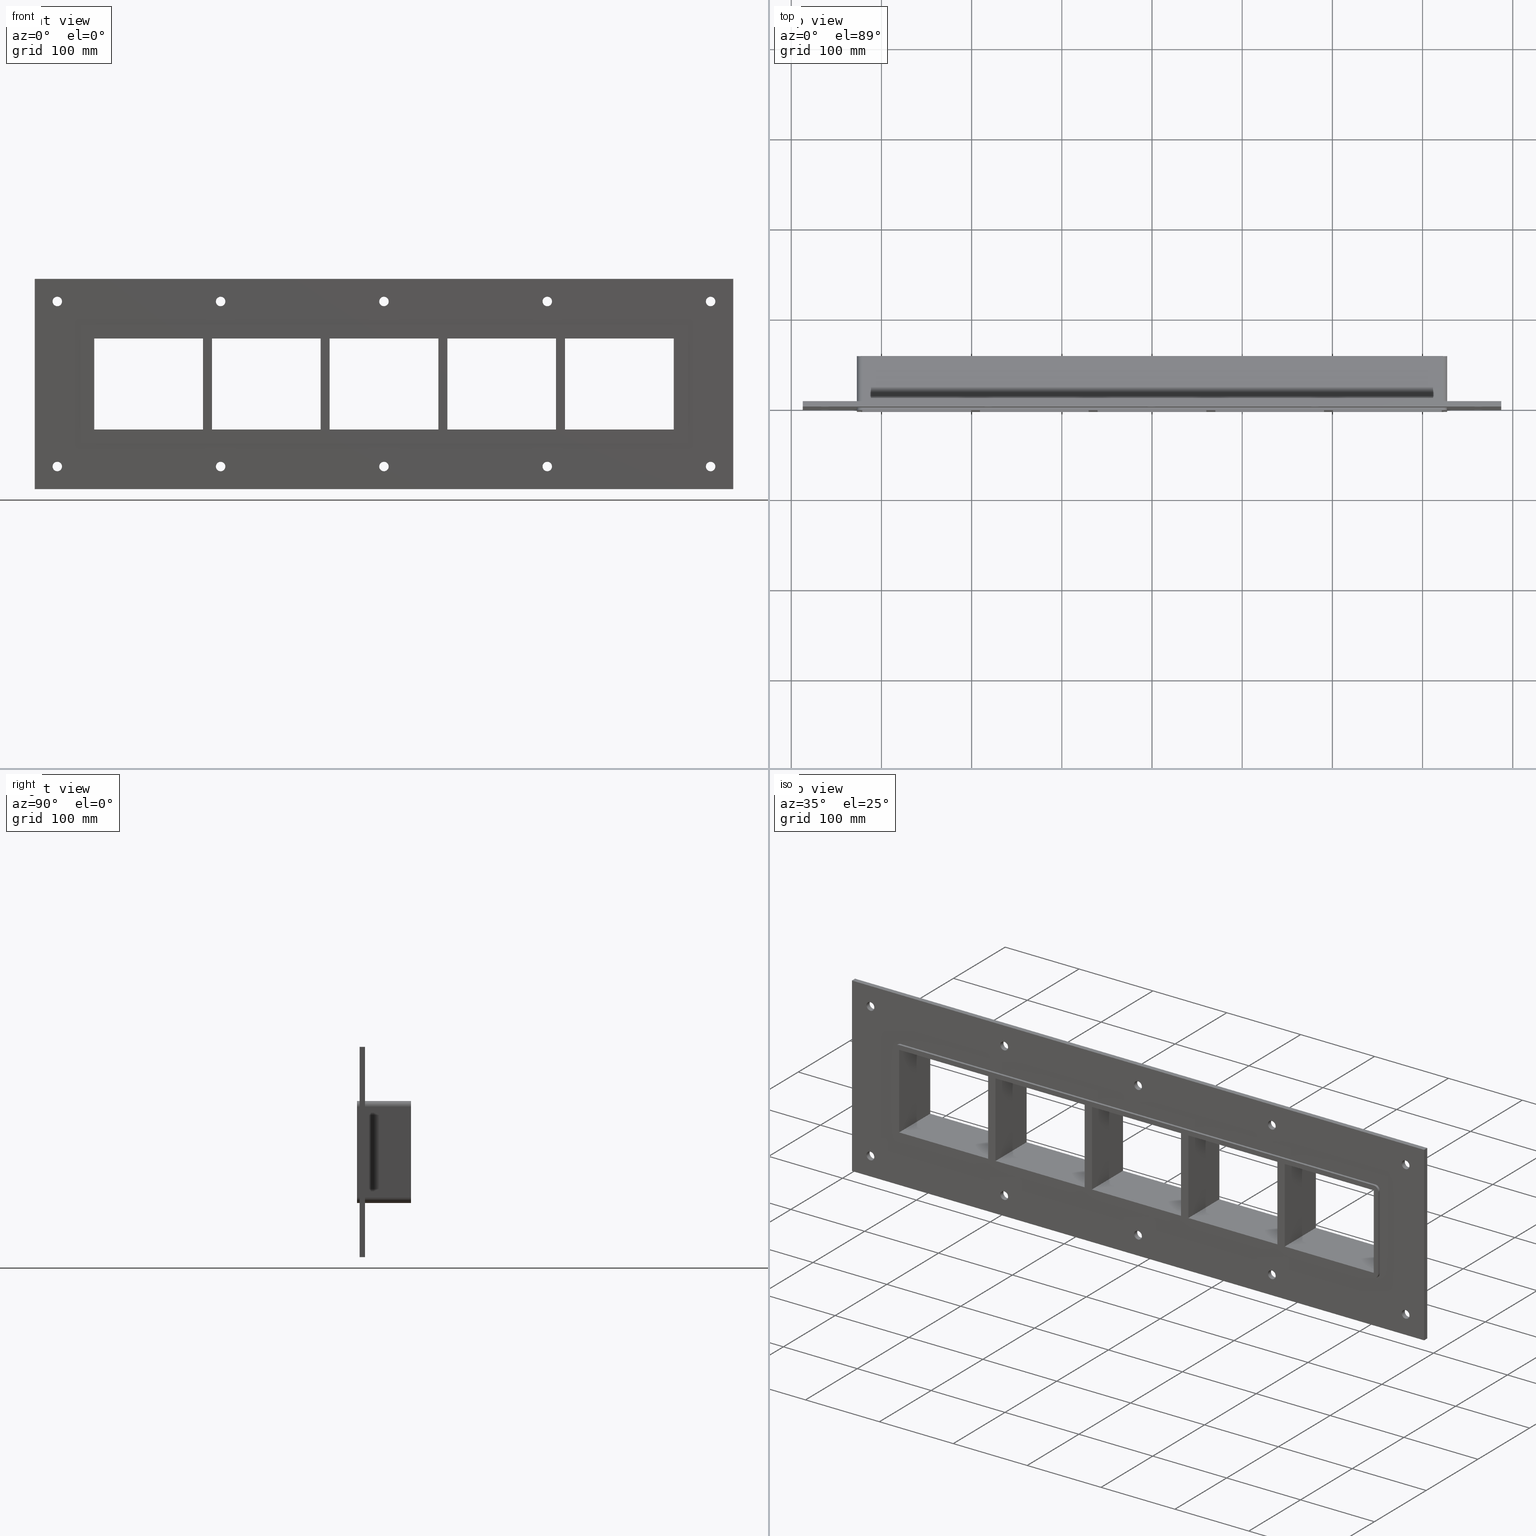
[diagram: canonical four-view strip — front | top / right | iso, engineering-drawing reading convention]
A machine part, canonical four-view strip (front | top / right | iso — engineering-drawing reading convention). The complete STEP part file that produces these views, byte-faithful:
ISO-10303-21;
HEADER;
/****************************************************************
 * Generated by software with PDElib inside                    *
 * PDElib Version v51a, created Wed 11/30/2011                  *
 * ITI Transcendata (http://www.transcendata.com/)              *
 ****************************************************************/
FILE_DESCRIPTION((''),'2;1');
FILE_NAME('L:\\roxtec-se\\Projects\\Ongoing_Projects\\12403 Transit Designer\\Product-data\\Product Data\\Transit designer Cad Generator\\CreatedFiles\\STEP\\GH2X5.stp','2015-01-13T14:15:00',(''),(''),'Autodesk Inventor 2013','Autodesk Inventor 2013','');
FILE_SCHEMA(('AUTOMOTIVE_DESIGN { 1 0 10303 214 1 1 1 1 }'));
ENDSEC;
DATA;
#5=APPLICATION_CONTEXT('automotive design');
#6=APPLICATION_PROTOCOL_DEFINITION('International Standard','automotive_design',2001,#5);
#7=PRODUCT_CONTEXT('',#5,'mechanical');
#8=PRODUCT('GH-ISO','GH-ISO',$,(#7));
#9=PRODUCT_RELATED_PRODUCT_CATEGORY('part',$,(#8));
#10=PRODUCT_DEFINITION_FORMATION('',$,#8);
#11=PRODUCT_DEFINITION_CONTEXT('part definition',#5,'design');
#12=PRODUCT_DEFINITION('',$,#10,#11);
#18=(NAMED_UNIT(*)PLANE_ANGLE_UNIT()SI_UNIT($,.RADIAN.));
#19=DIMENSIONAL_EXPONENTS(0.0,0.0,0.0,0.0,0.0,0.0,0.0);
#20=PLANE_ANGLE_MEASURE_WITH_UNIT(PLANE_ANGLE_MEASURE(0.0174532925),#18);
#24=(CONVERSION_BASED_UNIT('DEGREE',#20)NAMED_UNIT(#19)PLANE_ANGLE_UNIT());
#28=(NAMED_UNIT(*)SI_UNIT($,.STERADIAN.)SOLID_ANGLE_UNIT());
#32=(LENGTH_UNIT()NAMED_UNIT(*)SI_UNIT(.MILLI.,.METRE.));
#34=UNCERTAINTY_MEASURE_WITH_UNIT(LENGTH_MEASURE(0.01),#32,'DISTANCE_ACCURACY_VALUE','');
#36=(GEOMETRIC_REPRESENTATION_CONTEXT(3)GLOBAL_UNCERTAINTY_ASSIGNED_CONTEXT((#34))GLOBAL_UNIT_ASSIGNED_CONTEXT((#24,#28,#32))REPRESENTATION_CONTEXT('None','None'));
#37=AXIS2_PLACEMENT_3D('',#38,#39,#40);
#38=CARTESIAN_POINT('',(0.0,0.0,0.0));
#39=DIRECTION('',(0.0,0.0,1.0));
#40=DIRECTION('',(1.0,0.0,0.0));
#41=SHAPE_REPRESENTATION('',(#37),#36);
#42=PRODUCT_DEFINITION_SHAPE('','',#12);
#43=SHAPE_DEFINITION_REPRESENTATION(#42,#41);
#49=(NAMED_UNIT(*)PLANE_ANGLE_UNIT()SI_UNIT($,.RADIAN.));
#50=DIMENSIONAL_EXPONENTS(0.0,0.0,0.0,0.0,0.0,0.0,0.0);
#51=PLANE_ANGLE_MEASURE_WITH_UNIT(PLANE_ANGLE_MEASURE(0.0174532925),#49);
#55=(CONVERSION_BASED_UNIT('DEGREE',#51)NAMED_UNIT(#50)PLANE_ANGLE_UNIT());
#59=(NAMED_UNIT(*)SI_UNIT($,.STERADIAN.)SOLID_ANGLE_UNIT());
#63=(LENGTH_UNIT()NAMED_UNIT(*)SI_UNIT(.MILLI.,.METRE.));
#65=UNCERTAINTY_MEASURE_WITH_UNIT(LENGTH_MEASURE(0.000001),#63,'DISTANCE_ACCURACY_VALUE','');
#67=(GEOMETRIC_REPRESENTATION_CONTEXT(3)GLOBAL_UNCERTAINTY_ASSIGNED_CONTEXT((#65))GLOBAL_UNIT_ASSIGNED_CONTEXT((#55,#59,#63))REPRESENTATION_CONTEXT('','3D'));
#68=CARTESIAN_POINT('',(-362.25000000000017,811.01125146325808,-91.499999999999972));
#69=DIRECTION('',(0.0,-1.0,0.0));
#70=DIRECTION('',(1.0,0.0,0.0));
#71=AXIS2_PLACEMENT_3D('',#68,#69,#70);
#72=CYLINDRICAL_SURFACE('',#71,5.25);
#73=CARTESIAN_POINT('',(-367.50000000000011,5.999999999999943,-91.499999999999972));
#74=VERTEX_POINT('',#73);
#75=CARTESIAN_POINT('',(-362.25000000000017,5.999999999999943,-91.499999999999972));
#76=DIRECTION('',(0.0,-1.0,0.0));
#77=DIRECTION('',(1.0,0.0,0.0));
#78=AXIS2_PLACEMENT_3D('',#75,#76,#77);
#79=CIRCLE('',#78,5.25);
#80=EDGE_CURVE('',#74,#74,#79,.T.);
#81=ORIENTED_EDGE('',*,*,#80,.F.);
#82=EDGE_LOOP('',(#81));
#83=FACE_OUTER_BOUND('',#82,.T.);
#84=CARTESIAN_POINT('',(-357.00000000000017,0.0,-91.499999999999972));
#85=VERTEX_POINT('',#84);
#86=CARTESIAN_POINT('',(-362.25000000000017,0.0,-91.499999999999972));
#87=DIRECTION('',(0.0,1.0,0.0));
#88=DIRECTION('',(1.0,0.0,0.0));
#89=AXIS2_PLACEMENT_3D('',#86,#87,#88);
#90=CIRCLE('',#89,5.25);
#91=EDGE_CURVE('',#85,#85,#90,.T.);
#92=ORIENTED_EDGE('',*,*,#91,.F.);
#93=EDGE_LOOP('',(#92));
#94=FACE_BOUND('',#93,.T.);
#95=ADVANCED_FACE('',(#83,#94),#72,.F.);
#96=CARTESIAN_POINT('',(-181.15000000000015,811.01125146325808,91.500000000000043));
#97=DIRECTION('',(0.0,-1.0,0.0));
#98=DIRECTION('',(1.0,0.0,0.0));
#99=AXIS2_PLACEMENT_3D('',#96,#97,#98);
#100=CYLINDRICAL_SURFACE('',#99,5.25);
#101=CARTESIAN_POINT('',(-186.40000000000015,5.999999999999943,91.500000000000043));
#102=VERTEX_POINT('',#101);
#103=CARTESIAN_POINT('',(-181.15000000000015,5.999999999999943,91.500000000000043));
#104=DIRECTION('',(0.0,-1.0,0.0));
#105=DIRECTION('',(1.0,0.0,0.0));
#106=AXIS2_PLACEMENT_3D('',#103,#104,#105);
#107=CIRCLE('',#106,5.25);
#108=EDGE_CURVE('',#102,#102,#107,.T.);
#109=ORIENTED_EDGE('',*,*,#108,.F.);
#110=EDGE_LOOP('',(#109));
#111=FACE_OUTER_BOUND('',#110,.T.);
#112=CARTESIAN_POINT('',(-175.90000000000018,0.0,91.500000000000043));
#113=VERTEX_POINT('',#112);
#114=CARTESIAN_POINT('',(-181.15000000000015,0.0,91.500000000000043));
#115=DIRECTION('',(0.0,1.0,0.0));
#116=DIRECTION('',(1.0,0.0,0.0));
#117=AXIS2_PLACEMENT_3D('',#114,#115,#116);
#118=CIRCLE('',#117,5.25);
#119=EDGE_CURVE('',#113,#113,#118,.T.);
#120=ORIENTED_EDGE('',*,*,#119,.F.);
#121=EDGE_LOOP('',(#120));
#122=FACE_BOUND('',#121,.T.);
#123=ADVANCED_FACE('',(#111,#122),#100,.F.);
#124=CARTESIAN_POINT('',(-181.15000000000009,811.01125146325808,-91.499999999999972));
#125=DIRECTION('',(0.0,-1.0,0.0));
#126=DIRECTION('',(1.0,0.0,0.0));
#127=AXIS2_PLACEMENT_3D('',#124,#125,#126);
#128=CYLINDRICAL_SURFACE('',#127,5.25);
#129=CARTESIAN_POINT('',(-186.40000000000009,5.999999999999943,-91.499999999999972));
#130=VERTEX_POINT('',#129);
#131=CARTESIAN_POINT('',(-181.15000000000009,5.999999999999943,-91.499999999999972));
#132=DIRECTION('',(0.0,-1.0,0.0));
#133=DIRECTION('',(1.0,0.0,0.0));
#134=AXIS2_PLACEMENT_3D('',#131,#132,#133);
#135=CIRCLE('',#134,5.25);
#136=EDGE_CURVE('',#130,#130,#135,.T.);
#137=ORIENTED_EDGE('',*,*,#136,.F.);
#138=EDGE_LOOP('',(#137));
#139=FACE_OUTER_BOUND('',#138,.T.);
#140=CARTESIAN_POINT('',(-175.90000000000009,0.0,-91.499999999999972));
#141=VERTEX_POINT('',#140);
#142=CARTESIAN_POINT('',(-181.15000000000009,0.0,-91.499999999999972));
#143=DIRECTION('',(0.0,1.0,0.0));
#144=DIRECTION('',(1.0,0.0,0.0));
#145=AXIS2_PLACEMENT_3D('',#142,#143,#144);
#146=CIRCLE('',#145,5.25);
#147=EDGE_CURVE('',#141,#141,#146,.T.);
#148=ORIENTED_EDGE('',*,*,#147,.F.);
#149=EDGE_LOOP('',(#148));
#150=FACE_BOUND('',#149,.T.);
#151=ADVANCED_FACE('',(#139,#150),#128,.F.);
#152=CARTESIAN_POINT('',(-0.050000000000168,811.01125146325808,91.500000000000043));
#153=DIRECTION('',(0.0,-1.0,0.0));
#154=DIRECTION('',(1.0,0.0,0.0));
#155=AXIS2_PLACEMENT_3D('',#152,#153,#154);
#156=CYLINDRICAL_SURFACE('',#155,5.25);
#157=CARTESIAN_POINT('',(-5.300000000000154,5.999999999999943,91.500000000000043));
#158=VERTEX_POINT('',#157);
#159=CARTESIAN_POINT('',(-0.050000000000168,5.999999999999943,91.500000000000043));
#160=DIRECTION('',(0.0,-1.0,0.0));
#161=DIRECTION('',(1.0,0.0,0.0));
#162=AXIS2_PLACEMENT_3D('',#159,#160,#161);
#163=CIRCLE('',#162,5.25);
#164=EDGE_CURVE('',#158,#158,#163,.T.);
#165=ORIENTED_EDGE('',*,*,#164,.F.);
#166=EDGE_LOOP('',(#165));
#167=FACE_OUTER_BOUND('',#166,.T.);
#168=CARTESIAN_POINT('',(5.199999999999818,0.0,91.500000000000043));
#169=VERTEX_POINT('',#168);
#170=CARTESIAN_POINT('',(-0.050000000000168,0.0,91.500000000000043));
#171=DIRECTION('',(0.0,1.0,0.0));
#172=DIRECTION('',(1.0,0.0,0.0));
#173=AXIS2_PLACEMENT_3D('',#170,#171,#172);
#174=CIRCLE('',#173,5.25);
#175=EDGE_CURVE('',#169,#169,#174,.T.);
#176=ORIENTED_EDGE('',*,*,#175,.F.);
#177=EDGE_LOOP('',(#176));
#178=FACE_BOUND('',#177,.T.);
#179=ADVANCED_FACE('',(#167,#178),#156,.F.);
#180=CARTESIAN_POINT('',(-0.050000000000097,811.01125146325808,-91.499999999999972));
#181=DIRECTION('',(0.0,-1.0,0.0));
#182=DIRECTION('',(1.0,0.0,0.0));
#183=AXIS2_PLACEMENT_3D('',#180,#181,#182);
#184=CYLINDRICAL_SURFACE('',#183,5.25);
#185=CARTESIAN_POINT('',(-5.300000000000082,5.999999999999943,-91.499999999999972));
#186=VERTEX_POINT('',#185);
#187=CARTESIAN_POINT('',(-0.050000000000097,5.999999999999943,-91.499999999999972));
#188=DIRECTION('',(0.0,-1.0,0.0));
#189=DIRECTION('',(1.0,0.0,0.0));
#190=AXIS2_PLACEMENT_3D('',#187,#188,#189);
#191=CIRCLE('',#190,5.25);
#192=EDGE_CURVE('',#186,#186,#191,.T.);
#193=ORIENTED_EDGE('',*,*,#192,.F.);
#194=EDGE_LOOP('',(#193));
#195=FACE_OUTER_BOUND('',#194,.T.);
#196=CARTESIAN_POINT('',(5.199999999999889,0.0,-91.499999999999972));
#197=VERTEX_POINT('',#196);
#198=CARTESIAN_POINT('',(-0.050000000000097,0.0,-91.499999999999972));
#199=DIRECTION('',(0.0,1.0,0.0));
#200=DIRECTION('',(1.0,0.0,0.0));
#201=AXIS2_PLACEMENT_3D('',#198,#199,#200);
#202=CIRCLE('',#201,5.25);
#203=EDGE_CURVE('',#197,#197,#202,.T.);
#204=ORIENTED_EDGE('',*,*,#203,.F.);
#205=EDGE_LOOP('',(#204));
#206=FACE_BOUND('',#205,.T.);
#207=ADVANCED_FACE('',(#195,#206),#184,.F.);
#208=CARTESIAN_POINT('',(181.04999999999984,811.01125146325808,91.500000000000043));
#209=DIRECTION('',(0.0,-1.0,0.0));
#210=DIRECTION('',(1.0,0.0,0.0));
#211=AXIS2_PLACEMENT_3D('',#208,#209,#210);
#212=CYLINDRICAL_SURFACE('',#211,5.25);
#213=CARTESIAN_POINT('',(175.79999999999984,5.999999999999943,91.500000000000043));
#214=VERTEX_POINT('',#213);
#215=CARTESIAN_POINT('',(181.04999999999984,5.999999999999943,91.500000000000043));
#216=DIRECTION('',(0.0,-1.0,0.0));
#217=DIRECTION('',(1.0,0.0,0.0));
#218=AXIS2_PLACEMENT_3D('',#215,#216,#217);
#219=CIRCLE('',#218,5.25);
#220=EDGE_CURVE('',#214,#214,#219,.T.);
#221=ORIENTED_EDGE('',*,*,#220,.F.);
#222=EDGE_LOOP('',(#221));
#223=FACE_OUTER_BOUND('',#222,.T.);
#224=CARTESIAN_POINT('',(186.29999999999981,0.0,91.500000000000043));
#225=VERTEX_POINT('',#224);
#226=CARTESIAN_POINT('',(181.04999999999984,0.0,91.500000000000043));
#227=DIRECTION('',(0.0,1.0,0.0));
#228=DIRECTION('',(1.0,0.0,0.0));
#229=AXIS2_PLACEMENT_3D('',#226,#227,#228);
#230=CIRCLE('',#229,5.25);
#231=EDGE_CURVE('',#225,#225,#230,.T.);
#232=ORIENTED_EDGE('',*,*,#231,.F.);
#233=EDGE_LOOP('',(#232));
#234=FACE_BOUND('',#233,.T.);
#235=ADVANCED_FACE('',(#223,#234),#212,.F.);
#236=CARTESIAN_POINT('',(181.0499999999999,811.01125146325808,-91.499999999999972));
#237=DIRECTION('',(0.0,-1.0,0.0));
#238=DIRECTION('',(1.0,0.0,0.0));
#239=AXIS2_PLACEMENT_3D('',#236,#237,#238);
#240=CYLINDRICAL_SURFACE('',#239,5.25);
#241=CARTESIAN_POINT('',(175.7999999999999,5.999999999999943,-91.499999999999972));
#242=VERTEX_POINT('',#241);
#243=CARTESIAN_POINT('',(181.0499999999999,5.999999999999943,-91.499999999999972));
#244=DIRECTION('',(0.0,-1.0,0.0));
#245=DIRECTION('',(1.0,0.0,0.0));
#246=AXIS2_PLACEMENT_3D('',#243,#244,#245);
#247=CIRCLE('',#246,5.25);
#248=EDGE_CURVE('',#242,#242,#247,.T.);
#249=ORIENTED_EDGE('',*,*,#248,.F.);
#250=EDGE_LOOP('',(#249));
#251=FACE_OUTER_BOUND('',#250,.T.);
#252=CARTESIAN_POINT('',(186.2999999999999,0.0,-91.499999999999972));
#253=VERTEX_POINT('',#252);
#254=CARTESIAN_POINT('',(181.0499999999999,0.0,-91.499999999999972));
#255=DIRECTION('',(0.0,1.0,0.0));
#256=DIRECTION('',(1.0,0.0,0.0));
#257=AXIS2_PLACEMENT_3D('',#254,#255,#256);
#258=CIRCLE('',#257,5.25);
#259=EDGE_CURVE('',#253,#253,#258,.T.);
#260=ORIENTED_EDGE('',*,*,#259,.F.);
#261=EDGE_LOOP('',(#260));
#262=FACE_BOUND('',#261,.T.);
#263=ADVANCED_FACE('',(#251,#262),#240,.F.);
#264=CARTESIAN_POINT('',(362.14999999999986,811.01125146325808,-91.499999999999972));
#265=DIRECTION('',(0.0,-1.0,0.0));
#266=DIRECTION('',(1.0,0.0,0.0));
#267=AXIS2_PLACEMENT_3D('',#264,#265,#266);
#268=CYLINDRICAL_SURFACE('',#267,5.25);
#269=CARTESIAN_POINT('',(356.89999999999992,5.999999999999943,-91.499999999999972));
#270=VERTEX_POINT('',#269);
#271=CARTESIAN_POINT('',(362.14999999999986,5.999999999999943,-91.499999999999972));
#272=DIRECTION('',(0.0,-1.0,0.0));
#273=DIRECTION('',(1.0,0.0,0.0));
#274=AXIS2_PLACEMENT_3D('',#271,#272,#273);
#275=CIRCLE('',#274,5.25);
#276=EDGE_CURVE('',#270,#270,#275,.T.);
#277=ORIENTED_EDGE('',*,*,#276,.F.);
#278=EDGE_LOOP('',(#277));
#279=FACE_OUTER_BOUND('',#278,.T.);
#280=CARTESIAN_POINT('',(367.39999999999986,0.0,-91.499999999999972));
#281=VERTEX_POINT('',#280);
#282=CARTESIAN_POINT('',(362.14999999999986,0.0,-91.499999999999972));
#283=DIRECTION('',(0.0,1.0,0.0));
#284=DIRECTION('',(1.0,0.0,0.0));
#285=AXIS2_PLACEMENT_3D('',#282,#283,#284);
#286=CIRCLE('',#285,5.25);
#287=EDGE_CURVE('',#281,#281,#286,.T.);
#288=ORIENTED_EDGE('',*,*,#287,.F.);
#289=EDGE_LOOP('',(#288));
#290=FACE_BOUND('',#289,.T.);
#291=ADVANCED_FACE('',(#279,#290),#268,.F.);
#292=CARTESIAN_POINT('',(-362.25000000000017,811.01125146325808,91.500000000000043));
#293=DIRECTION('',(0.0,-1.0,0.0));
#294=DIRECTION('',(1.0,0.0,0.0));
#295=AXIS2_PLACEMENT_3D('',#292,#293,#294);
#296=CYLINDRICAL_SURFACE('',#295,5.25);
#297=CARTESIAN_POINT('',(-367.50000000000011,5.999999999999943,91.500000000000043));
#298=VERTEX_POINT('',#297);
#299=CARTESIAN_POINT('',(-362.25000000000017,5.999999999999943,91.500000000000043));
#300=DIRECTION('',(0.0,-1.0,0.0));
#301=DIRECTION('',(1.0,0.0,0.0));
#302=AXIS2_PLACEMENT_3D('',#299,#300,#301);
#303=CIRCLE('',#302,5.25);
#304=EDGE_CURVE('',#298,#298,#303,.T.);
#305=ORIENTED_EDGE('',*,*,#304,.F.);
#306=EDGE_LOOP('',(#305));
#307=FACE_OUTER_BOUND('',#306,.T.);
#308=CARTESIAN_POINT('',(-357.00000000000017,0.0,91.500000000000043));
#309=VERTEX_POINT('',#308);
#310=CARTESIAN_POINT('',(-362.25000000000017,0.0,91.500000000000043));
#311=DIRECTION('',(0.0,1.0,0.0));
#312=DIRECTION('',(1.0,0.0,0.0));
#313=AXIS2_PLACEMENT_3D('',#310,#311,#312);
#314=CIRCLE('',#313,5.25);
#315=EDGE_CURVE('',#309,#309,#314,.T.);
#316=ORIENTED_EDGE('',*,*,#315,.F.);
#317=EDGE_LOOP('',(#316));
#318=FACE_BOUND('',#317,.T.);
#319=ADVANCED_FACE('',(#307,#318),#296,.F.);
#320=CARTESIAN_POINT('',(362.14999999999981,811.01125146325808,91.500000000000043));
#321=DIRECTION('',(0.0,-1.0,0.0));
#322=DIRECTION('',(1.0,0.0,0.0));
#323=AXIS2_PLACEMENT_3D('',#320,#321,#322);
#324=CYLINDRICAL_SURFACE('',#323,5.25);
#325=CARTESIAN_POINT('',(356.89999999999986,5.999999999999943,91.500000000000043));
#326=VERTEX_POINT('',#325);
#327=CARTESIAN_POINT('',(362.14999999999981,5.999999999999943,91.500000000000043));
#328=DIRECTION('',(0.0,-1.0,0.0));
#329=DIRECTION('',(1.0,0.0,0.0));
#330=AXIS2_PLACEMENT_3D('',#327,#328,#329);
#331=CIRCLE('',#330,5.25);
#332=EDGE_CURVE('',#326,#326,#331,.T.);
#333=ORIENTED_EDGE('',*,*,#332,.F.);
#334=EDGE_LOOP('',(#333));
#335=FACE_OUTER_BOUND('',#334,.T.);
#336=CARTESIAN_POINT('',(367.39999999999981,0.0,91.500000000000043));
#337=VERTEX_POINT('',#336);
#338=CARTESIAN_POINT('',(362.14999999999981,0.0,91.500000000000043));
#339=DIRECTION('',(0.0,1.0,0.0));
#340=DIRECTION('',(1.0,0.0,0.0));
#341=AXIS2_PLACEMENT_3D('',#338,#339,#340);
#342=CIRCLE('',#341,5.25);
#343=EDGE_CURVE('',#337,#337,#342,.T.);
#344=ORIENTED_EDGE('',*,*,#343,.F.);
#345=EDGE_LOOP('',(#344));
#346=FACE_BOUND('',#345,.T.);
#347=ADVANCED_FACE('',(#335,#346),#324,.F.);
#348=CARTESIAN_POINT('',(190.74999999999804,-3.0,-50.499999999999972));
#349=DIRECTION('',(-1.0,0.0,0.0));
#350=DIRECTION('',(0.0,0.0,1.0));
#351=AXIS2_PLACEMENT_3D('',#348,#349,#350);
#352=PLANE('',#351);
#353=CARTESIAN_POINT('',(190.74999999999804,-3.0,-50.499999999999972));
#354=VERTEX_POINT('',#353);
#355=CARTESIAN_POINT('',(190.74999999999804,-3.0,50.499999999999972));
#356=VERTEX_POINT('',#355);
#357=CARTESIAN_POINT('',(190.74999999999804,-3.0,-50.499999999999972));
#358=DIRECTION('',(0.0,0.0,1.0));
#359=VECTOR('',#358,100.99999999999994);
#360=LINE('',#357,#359);
#361=EDGE_CURVE('',#354,#356,#360,.T.);
#362=ORIENTED_EDGE('',*,*,#361,.T.);
#363=CARTESIAN_POINT('',(190.74999999999804,57.0,50.499999999999972));
#364=VERTEX_POINT('',#363);
#365=CARTESIAN_POINT('',(190.74999999999804,57.000000000000007,50.499999999999972));
#366=DIRECTION('',(0.0,-1.0,0.0));
#367=VECTOR('',#366,60.000000000000007);
#368=LINE('',#365,#367);
#369=EDGE_CURVE('',#364,#356,#368,.T.);
#370=ORIENTED_EDGE('',*,*,#369,.F.);
#371=CARTESIAN_POINT('',(190.74999999999804,57.0,-50.499999999999972));
#372=VERTEX_POINT('',#371);
#373=CARTESIAN_POINT('',(190.74999999999804,57.0,-50.499999999999972));
#374=DIRECTION('',(0.0,0.0,1.0));
#375=VECTOR('',#374,100.99999999999994);
#376=LINE('',#373,#375);
#377=EDGE_CURVE('',#372,#364,#376,.T.);
#378=ORIENTED_EDGE('',*,*,#377,.F.);
#379=CARTESIAN_POINT('',(190.74999999999804,-3.0,-50.499999999999972));
#380=DIRECTION('',(0.0,1.0,0.0));
#381=VECTOR('',#380,60.000000000000007);
#382=LINE('',#379,#381);
#383=EDGE_CURVE('',#354,#372,#382,.T.);
#384=ORIENTED_EDGE('',*,*,#383,.F.);
#385=EDGE_LOOP('',(#362,#370,#378,#384));
#386=FACE_OUTER_BOUND('',#385,.T.);
#387=ADVANCED_FACE('',(#386),#352,.T.);
#388=CARTESIAN_POINT('',(200.74999999999278,-3.0,50.499999999999972));
#389=DIRECTION('',(1.0,0.0,0.0));
#390=DIRECTION('',(0.0,0.0,-1.0));
#391=AXIS2_PLACEMENT_3D('',#388,#389,#390);
#392=PLANE('',#391);
#393=CARTESIAN_POINT('',(200.74999999999278,-3.0,50.499999999999972));
#394=VERTEX_POINT('',#393);
#395=CARTESIAN_POINT('',(200.74999999999278,-3.0,-50.499999999987082));
#396=VERTEX_POINT('',#395);
#397=CARTESIAN_POINT('',(200.74999999999278,-3.0,50.499999999999972));
#398=DIRECTION('',(0.0,0.0,-1.0));
#399=VECTOR('',#398,100.99999999998704);
#400=LINE('',#397,#399);
#401=EDGE_CURVE('',#394,#396,#400,.T.);
#402=ORIENTED_EDGE('',*,*,#401,.T.);
#403=CARTESIAN_POINT('',(200.74999999999278,57.0,-50.499999999987075));
#404=VERTEX_POINT('',#403);
#405=CARTESIAN_POINT('',(200.74999999999278,57.000000000000007,-50.499999999999972));
#406=DIRECTION('',(0.0,-1.0,0.0));
#407=VECTOR('',#406,60.000000000000007);
#408=LINE('',#405,#407);
#409=EDGE_CURVE('',#404,#396,#408,.T.);
#410=ORIENTED_EDGE('',*,*,#409,.F.);
#411=CARTESIAN_POINT('',(200.74999999999278,57.0,50.499999999999972));
#412=VERTEX_POINT('',#411);
#413=CARTESIAN_POINT('',(200.74999999999278,57.0,50.499999999999972));
#414=DIRECTION('',(0.0,0.0,-1.0));
#415=VECTOR('',#414,100.99999999998704);
#416=LINE('',#413,#415);
#417=EDGE_CURVE('',#412,#404,#416,.T.);
#418=ORIENTED_EDGE('',*,*,#417,.F.);
#419=CARTESIAN_POINT('',(200.74999999999278,-3.0,50.499999999999972));
#420=DIRECTION('',(0.0,1.0,0.0));
#421=VECTOR('',#420,60.000000000000007);
#422=LINE('',#419,#421);
#423=EDGE_CURVE('',#394,#412,#422,.T.);
#424=ORIENTED_EDGE('',*,*,#423,.F.);
#425=EDGE_LOOP('',(#402,#410,#418,#424));
#426=FACE_OUTER_BOUND('',#425,.T.);
#427=ADVANCED_FACE('',(#426),#392,.T.);
#428=CARTESIAN_POINT('',(60.249999999997996,-3.0,-50.499999999999972));
#429=DIRECTION('',(-1.0,0.0,0.0));
#430=DIRECTION('',(0.0,0.0,1.0));
#431=AXIS2_PLACEMENT_3D('',#428,#429,#430);
#432=PLANE('',#431);
#433=CARTESIAN_POINT('',(60.249999999997996,-3.0,-50.499999999999972));
#434=VERTEX_POINT('',#433);
#435=CARTESIAN_POINT('',(60.249999999997996,-3.0,50.499999999999972));
#436=VERTEX_POINT('',#435);
#437=CARTESIAN_POINT('',(60.249999999997996,-3.0,-50.499999999999972));
#438=DIRECTION('',(0.0,0.0,1.0));
#439=VECTOR('',#438,100.99999999999994);
#440=LINE('',#437,#439);
#441=EDGE_CURVE('',#434,#436,#440,.T.);
#442=ORIENTED_EDGE('',*,*,#441,.T.);
#443=CARTESIAN_POINT('',(60.249999999997996,57.0,50.499999999999972));
#444=VERTEX_POINT('',#443);
#445=CARTESIAN_POINT('',(60.249999999997996,57.000000000000007,50.499999999999972));
#446=DIRECTION('',(0.0,-1.0,0.0));
#447=VECTOR('',#446,60.000000000000007);
#448=LINE('',#445,#447);
#449=EDGE_CURVE('',#444,#436,#448,.T.);
#450=ORIENTED_EDGE('',*,*,#449,.F.);
#451=CARTESIAN_POINT('',(60.249999999997996,57.0,-50.499999999999972));
#452=VERTEX_POINT('',#451);
#453=CARTESIAN_POINT('',(60.249999999997996,57.0,-50.499999999999972));
#454=DIRECTION('',(0.0,0.0,1.0));
#455=VECTOR('',#454,100.99999999999994);
#456=LINE('',#453,#455);
#457=EDGE_CURVE('',#452,#444,#456,.T.);
#458=ORIENTED_EDGE('',*,*,#457,.F.);
#459=CARTESIAN_POINT('',(60.249999999997996,-3.0,-50.499999999999972));
#460=DIRECTION('',(0.0,1.0,0.0));
#461=VECTOR('',#460,60.000000000000007);
#462=LINE('',#459,#461);
#463=EDGE_CURVE('',#434,#452,#462,.T.);
#464=ORIENTED_EDGE('',*,*,#463,.F.);
#465=EDGE_LOOP('',(#442,#450,#458,#464));
#466=FACE_OUTER_BOUND('',#465,.T.);
#467=ADVANCED_FACE('',(#466),#432,.T.);
#468=CARTESIAN_POINT('',(70.249999999992738,-3.0,50.499999999999972));
#469=DIRECTION('',(1.0,0.0,0.0));
#470=DIRECTION('',(0.0,0.0,-1.0));
#471=AXIS2_PLACEMENT_3D('',#468,#469,#470);
#472=PLANE('',#471);
#473=CARTESIAN_POINT('',(70.249999999992738,-3.0,50.499999999999972));
#474=VERTEX_POINT('',#473);
#475=CARTESIAN_POINT('',(70.249999999992738,-3.0,-50.499999999987082));
#476=VERTEX_POINT('',#475);
#477=CARTESIAN_POINT('',(70.249999999992738,-3.0,50.499999999999972));
#478=DIRECTION('',(0.0,0.0,-1.0));
#479=VECTOR('',#478,100.99999999998704);
#480=LINE('',#477,#479);
#481=EDGE_CURVE('',#474,#476,#480,.T.);
#482=ORIENTED_EDGE('',*,*,#481,.T.);
#483=CARTESIAN_POINT('',(70.249999999992738,57.0,-50.499999999987075));
#484=VERTEX_POINT('',#483);
#485=CARTESIAN_POINT('',(70.249999999992738,57.000000000000007,-50.499999999999972));
#486=DIRECTION('',(0.0,-1.0,0.0));
#487=VECTOR('',#486,60.000000000000007);
#488=LINE('',#485,#487);
#489=EDGE_CURVE('',#484,#476,#488,.T.);
#490=ORIENTED_EDGE('',*,*,#489,.F.);
#491=CARTESIAN_POINT('',(70.249999999992738,57.0,50.499999999999972));
#492=VERTEX_POINT('',#491);
#493=CARTESIAN_POINT('',(70.249999999992738,57.0,50.499999999999972));
#494=DIRECTION('',(0.0,0.0,-1.0));
#495=VECTOR('',#494,100.99999999998704);
#496=LINE('',#493,#495);
#497=EDGE_CURVE('',#492,#484,#496,.T.);
#498=ORIENTED_EDGE('',*,*,#497,.F.);
#499=CARTESIAN_POINT('',(70.249999999992738,-3.0,50.499999999999972));
#500=DIRECTION('',(0.0,1.0,0.0));
#501=VECTOR('',#500,60.000000000000007);
#502=LINE('',#499,#501);
#503=EDGE_CURVE('',#474,#492,#502,.T.);
#504=ORIENTED_EDGE('',*,*,#503,.F.);
#505=EDGE_LOOP('',(#482,#490,#498,#504));
#506=FACE_OUTER_BOUND('',#505,.T.);
#507=ADVANCED_FACE('',(#506),#472,.T.);
#508=CARTESIAN_POINT('',(-70.250000000002018,-3.0,-50.499999999999972));
#509=DIRECTION('',(-1.0,0.0,0.0));
#510=DIRECTION('',(0.0,0.0,1.0));
#511=AXIS2_PLACEMENT_3D('',#508,#509,#510);
#512=PLANE('',#511);
#513=CARTESIAN_POINT('',(-70.250000000002018,-3.0,-50.499999999999972));
#514=VERTEX_POINT('',#513);
#515=CARTESIAN_POINT('',(-70.250000000002018,-3.0,50.499999999999972));
#516=VERTEX_POINT('',#515);
#517=CARTESIAN_POINT('',(-70.250000000002018,-3.0,-50.499999999999972));
#518=DIRECTION('',(0.0,0.0,1.0));
#519=VECTOR('',#518,100.99999999999994);
#520=LINE('',#517,#519);
#521=EDGE_CURVE('',#514,#516,#520,.T.);
#522=ORIENTED_EDGE('',*,*,#521,.T.);
#523=CARTESIAN_POINT('',(-70.250000000002018,57.0,50.499999999999972));
#524=VERTEX_POINT('',#523);
#525=CARTESIAN_POINT('',(-70.250000000002032,57.000000000000007,50.499999999999972));
#526=DIRECTION('',(0.0,-1.0,0.0));
#527=VECTOR('',#526,60.000000000000007);
#528=LINE('',#525,#527);
#529=EDGE_CURVE('',#524,#516,#528,.T.);
#530=ORIENTED_EDGE('',*,*,#529,.F.);
#531=CARTESIAN_POINT('',(-70.250000000002018,57.0,-50.499999999999972));
#532=VERTEX_POINT('',#531);
#533=CARTESIAN_POINT('',(-70.250000000002018,57.0,-50.499999999999972));
#534=DIRECTION('',(0.0,0.0,1.0));
#535=VECTOR('',#534,100.99999999999994);
#536=LINE('',#533,#535);
#537=EDGE_CURVE('',#532,#524,#536,.T.);
#538=ORIENTED_EDGE('',*,*,#537,.F.);
#539=CARTESIAN_POINT('',(-70.25000000000199,-3.0,-50.499999999999972));
#540=DIRECTION('',(0.0,1.0,0.0));
#541=VECTOR('',#540,60.000000000000007);
#542=LINE('',#539,#541);
#543=EDGE_CURVE('',#514,#532,#542,.T.);
#544=ORIENTED_EDGE('',*,*,#543,.F.);
#545=EDGE_LOOP('',(#522,#530,#538,#544));
#546=FACE_OUTER_BOUND('',#545,.T.);
#547=ADVANCED_FACE('',(#546),#512,.T.);
#548=CARTESIAN_POINT('',(-60.250000000007269,-3.0,50.499999999999972));
#549=DIRECTION('',(1.0,0.0,0.0));
#550=DIRECTION('',(0.0,0.0,-1.0));
#551=AXIS2_PLACEMENT_3D('',#548,#549,#550);
#552=PLANE('',#551);
#553=CARTESIAN_POINT('',(-60.250000000007269,-3.0,50.499999999999972));
#554=VERTEX_POINT('',#553);
#555=CARTESIAN_POINT('',(-60.250000000007269,-3.0,-50.499999999987082));
#556=VERTEX_POINT('',#555);
#557=CARTESIAN_POINT('',(-60.250000000007269,-3.0,50.499999999999972));
#558=DIRECTION('',(0.0,0.0,-1.0));
#559=VECTOR('',#558,100.99999999998704);
#560=LINE('',#557,#559);
#561=EDGE_CURVE('',#554,#556,#560,.T.);
#562=ORIENTED_EDGE('',*,*,#561,.T.);
#563=CARTESIAN_POINT('',(-60.250000000007269,57.0,-50.499999999987075));
#564=VERTEX_POINT('',#563);
#565=CARTESIAN_POINT('',(-60.250000000007248,57.000000000000007,-50.499999999999972));
#566=DIRECTION('',(0.0,-1.0,0.0));
#567=VECTOR('',#566,60.000000000000007);
#568=LINE('',#565,#567);
#569=EDGE_CURVE('',#564,#556,#568,.T.);
#570=ORIENTED_EDGE('',*,*,#569,.F.);
#571=CARTESIAN_POINT('',(-60.250000000007269,57.0,50.499999999999972));
#572=VERTEX_POINT('',#571);
#573=CARTESIAN_POINT('',(-60.250000000007269,57.0,50.499999999999972));
#574=DIRECTION('',(0.0,0.0,-1.0));
#575=VECTOR('',#574,100.99999999998704);
#576=LINE('',#573,#575);
#577=EDGE_CURVE('',#572,#564,#576,.T.);
#578=ORIENTED_EDGE('',*,*,#577,.F.);
#579=CARTESIAN_POINT('',(-60.25000000000729,-3.0,50.499999999999972));
#580=DIRECTION('',(0.0,1.0,0.0));
#581=VECTOR('',#580,60.000000000000007);
#582=LINE('',#579,#581);
#583=EDGE_CURVE('',#554,#572,#582,.T.);
#584=ORIENTED_EDGE('',*,*,#583,.F.);
#585=EDGE_LOOP('',(#562,#570,#578,#584));
#586=FACE_OUTER_BOUND('',#585,.T.);
#587=ADVANCED_FACE('',(#586),#552,.T.);
#588=CARTESIAN_POINT('',(321.25000000000006,0.0,-50.499999999999972));
#589=DIRECTION('',(0.0,0.0,-1.0));
#590=DIRECTION('',(-1.0,0.0,0.0));
#591=AXIS2_PLACEMENT_3D('',#588,#589,#590);
#592=PLANE('',#591);
#593=ORIENTED_EDGE('',*,*,#543,.T.);
#594=CARTESIAN_POINT('',(-190.75000000000728,57.0,-50.499999999987075));
#595=VERTEX_POINT('',#594);
#596=CARTESIAN_POINT('',(-190.75000000000725,57.0,-50.499999999999972));
#597=DIRECTION('',(1.0,0.0,0.0));
#598=VECTOR('',#597,120.50000000000523);
#599=LINE('',#596,#598);
#600=EDGE_CURVE('',#595,#532,#599,.T.);
#601=ORIENTED_EDGE('',*,*,#600,.F.);
#602=CARTESIAN_POINT('',(-190.75000000000728,-3.0,-50.499999999987082));
#603=VERTEX_POINT('',#602);
#604=CARTESIAN_POINT('',(-190.75000000000728,57.000000000000007,-50.499999999999972));
#605=DIRECTION('',(0.0,-1.0,0.0));
#606=VECTOR('',#605,60.000000000000007);
#607=LINE('',#604,#606);
#608=EDGE_CURVE('',#595,#603,#607,.T.);
#609=ORIENTED_EDGE('',*,*,#608,.T.);
#610=CARTESIAN_POINT('',(-70.250000000002018,-3.0,-50.499999999999972));
#611=DIRECTION('',(-1.0,0.0,0.0));
#612=VECTOR('',#611,120.50000000000523);
#613=LINE('',#610,#612);
#614=EDGE_CURVE('',#514,#603,#613,.T.);
#615=ORIENTED_EDGE('',*,*,#614,.F.);
#616=EDGE_LOOP('',(#593,#601,#609,#615));
#617=FACE_OUTER_BOUND('',#616,.T.);
#618=ADVANCED_FACE('',(#617),#592,.F.);
#619=CARTESIAN_POINT('',(321.25000000000006,0.0,-50.499999999999972));
#620=DIRECTION('',(0.0,0.0,-1.0));
#621=DIRECTION('',(-1.0,0.0,0.0));
#622=AXIS2_PLACEMENT_3D('',#619,#620,#621);
#623=PLANE('',#622);
#624=ORIENTED_EDGE('',*,*,#463,.T.);
#625=CARTESIAN_POINT('',(-60.250000000007276,57.0,-50.499999999999972));
#626=DIRECTION('',(1.0,0.0,0.0));
#627=VECTOR('',#626,120.50000000000526);
#628=LINE('',#625,#627);
#629=EDGE_CURVE('',#564,#452,#628,.T.);
#630=ORIENTED_EDGE('',*,*,#629,.F.);
#631=ORIENTED_EDGE('',*,*,#569,.T.);
#632=CARTESIAN_POINT('',(60.249999999997982,-3.0,-50.499999999999972));
#633=DIRECTION('',(-1.0,0.0,0.0));
#634=VECTOR('',#633,120.50000000000526);
#635=LINE('',#632,#634);
#636=EDGE_CURVE('',#434,#556,#635,.T.);
#637=ORIENTED_EDGE('',*,*,#636,.F.);
#638=EDGE_LOOP('',(#624,#630,#631,#637));
#639=FACE_OUTER_BOUND('',#638,.T.);
#640=ADVANCED_FACE('',(#639),#623,.F.);
#641=CARTESIAN_POINT('',(321.25000000000006,0.0,-50.499999999999972));
#642=DIRECTION('',(0.0,0.0,-1.0));
#643=DIRECTION('',(-1.0,0.0,0.0));
#644=AXIS2_PLACEMENT_3D('',#641,#642,#643);
#645=PLANE('',#644);
#646=ORIENTED_EDGE('',*,*,#383,.T.);
#647=CARTESIAN_POINT('',(70.249999999992724,57.0,-50.499999999999972));
#648=DIRECTION('',(1.0,0.0,0.0));
#649=VECTOR('',#648,120.50000000000531);
#650=LINE('',#647,#649);
#651=EDGE_CURVE('',#484,#372,#650,.T.);
#652=ORIENTED_EDGE('',*,*,#651,.F.);
#653=ORIENTED_EDGE('',*,*,#489,.T.);
#654=CARTESIAN_POINT('',(190.74999999999804,-3.0,-50.499999999999972));
#655=DIRECTION('',(-1.0,0.0,0.0));
#656=VECTOR('',#655,120.50000000000531);
#657=LINE('',#654,#656);
#658=EDGE_CURVE('',#354,#476,#657,.T.);
#659=ORIENTED_EDGE('',*,*,#658,.F.);
#660=EDGE_LOOP('',(#646,#652,#653,#659));
#661=FACE_OUTER_BOUND('',#660,.T.);
#662=ADVANCED_FACE('',(#661),#645,.F.);
#663=CARTESIAN_POINT('',(321.25000000000006,0.0,-50.499999999999972));
#664=DIRECTION('',(0.0,0.0,-1.0));
#665=DIRECTION('',(-1.0,0.0,0.0));
#666=AXIS2_PLACEMENT_3D('',#663,#664,#665);
#667=PLANE('',#666);
#668=ORIENTED_EDGE('',*,*,#409,.T.);
#669=CARTESIAN_POINT('',(321.25000000000006,-3.0,-50.499999999999972));
#670=VERTEX_POINT('',#669);
#671=CARTESIAN_POINT('',(321.25000000000006,-3.0,-50.499999999999972));
#672=DIRECTION('',(-1.0,0.0,0.0));
#673=VECTOR('',#672,120.50000000000728);
#674=LINE('',#671,#673);
#675=EDGE_CURVE('',#670,#396,#674,.T.);
#676=ORIENTED_EDGE('',*,*,#675,.F.);
#677=CARTESIAN_POINT('',(321.25000000000006,57.0,-50.499999999999972));
#678=VERTEX_POINT('',#677);
#679=CARTESIAN_POINT('',(321.25000000000006,56.999999999999993,-50.499999999999972));
#680=DIRECTION('',(0.0,-1.0,0.0));
#681=VECTOR('',#680,59.999999999999993);
#682=LINE('',#679,#681);
#683=EDGE_CURVE('',#678,#670,#682,.T.);
#684=ORIENTED_EDGE('',*,*,#683,.F.);
#685=CARTESIAN_POINT('',(200.74999999999278,57.0,-50.499999999999972));
#686=DIRECTION('',(1.0,0.0,0.0));
#687=VECTOR('',#686,120.50000000000728);
#688=LINE('',#685,#687);
#689=EDGE_CURVE('',#404,#678,#688,.T.);
#690=ORIENTED_EDGE('',*,*,#689,.F.);
#691=EDGE_LOOP('',(#668,#676,#684,#690));
#692=FACE_OUTER_BOUND('',#691,.T.);
#693=ADVANCED_FACE('',(#692),#667,.F.);
#694=CARTESIAN_POINT('',(-321.25,0.0,50.499999999999972));
#695=DIRECTION('',(0.0,0.0,1.0));
#696=DIRECTION('',(1.0,0.0,0.0));
#697=AXIS2_PLACEMENT_3D('',#694,#695,#696);
#698=PLANE('',#697);
#699=ORIENTED_EDGE('',*,*,#529,.T.);
#700=CARTESIAN_POINT('',(-190.75000000000728,-3.0,50.499999999999972));
#701=VERTEX_POINT('',#700);
#702=CARTESIAN_POINT('',(-190.75000000000728,-3.0,50.499999999999972));
#703=DIRECTION('',(1.0,0.0,0.0));
#704=VECTOR('',#703,120.50000000000526);
#705=LINE('',#702,#704);
#706=EDGE_CURVE('',#701,#516,#705,.T.);
#707=ORIENTED_EDGE('',*,*,#706,.F.);
#708=CARTESIAN_POINT('',(-190.75000000000728,57.0,50.499999999999972));
#709=VERTEX_POINT('',#708);
#710=CARTESIAN_POINT('',(-190.75000000000728,-3.0,50.499999999999972));
#711=DIRECTION('',(0.0,1.0,0.0));
#712=VECTOR('',#711,60.000000000000007);
#713=LINE('',#710,#712);
#714=EDGE_CURVE('',#701,#709,#713,.T.);
#715=ORIENTED_EDGE('',*,*,#714,.T.);
#716=CARTESIAN_POINT('',(-70.250000000002018,57.0,50.499999999999972));
#717=DIRECTION('',(-1.0,0.0,0.0));
#718=VECTOR('',#717,120.50000000000526);
#719=LINE('',#716,#718);
#720=EDGE_CURVE('',#524,#709,#719,.T.);
#721=ORIENTED_EDGE('',*,*,#720,.F.);
#722=EDGE_LOOP('',(#699,#707,#715,#721));
#723=FACE_OUTER_BOUND('',#722,.T.);
#724=ADVANCED_FACE('',(#723),#698,.F.);
#725=CARTESIAN_POINT('',(-321.25,0.0,50.499999999999972));
#726=DIRECTION('',(0.0,0.0,1.0));
#727=DIRECTION('',(1.0,0.0,0.0));
#728=AXIS2_PLACEMENT_3D('',#725,#726,#727);
#729=PLANE('',#728);
#730=ORIENTED_EDGE('',*,*,#449,.T.);
#731=CARTESIAN_POINT('',(-60.250000000007276,-3.0,50.499999999999972));
#732=DIRECTION('',(1.0,0.0,0.0));
#733=VECTOR('',#732,120.50000000000529);
#734=LINE('',#731,#733);
#735=EDGE_CURVE('',#554,#436,#734,.T.);
#736=ORIENTED_EDGE('',*,*,#735,.F.);
#737=ORIENTED_EDGE('',*,*,#583,.T.);
#738=CARTESIAN_POINT('',(60.24999999999801,57.0,50.499999999999972));
#739=DIRECTION('',(-1.0,0.0,0.0));
#740=VECTOR('',#739,120.50000000000529);
#741=LINE('',#738,#740);
#742=EDGE_CURVE('',#444,#572,#741,.T.);
#743=ORIENTED_EDGE('',*,*,#742,.F.);
#744=EDGE_LOOP('',(#730,#736,#737,#743));
#745=FACE_OUTER_BOUND('',#744,.T.);
#746=ADVANCED_FACE('',(#745),#729,.F.);
#747=CARTESIAN_POINT('',(-321.25,0.0,50.499999999999972));
#748=DIRECTION('',(0.0,0.0,1.0));
#749=DIRECTION('',(1.0,0.0,0.0));
#750=AXIS2_PLACEMENT_3D('',#747,#748,#749);
#751=PLANE('',#750);
#752=ORIENTED_EDGE('',*,*,#423,.T.);
#753=CARTESIAN_POINT('',(321.25000000000006,57.0,50.499999999999972));
#754=VERTEX_POINT('',#753);
#755=CARTESIAN_POINT('',(321.25000000000006,57.0,50.499999999999972));
#756=DIRECTION('',(-1.0,0.0,0.0));
#757=VECTOR('',#756,120.50000000000728);
#758=LINE('',#755,#757);
#759=EDGE_CURVE('',#754,#412,#758,.T.);
#760=ORIENTED_EDGE('',*,*,#759,.F.);
#761=CARTESIAN_POINT('',(321.25000000000006,-3.0,50.499999999999972));
#762=VERTEX_POINT('',#761);
#763=CARTESIAN_POINT('',(321.25000000000006,-3.0,50.499999999999972));
#764=DIRECTION('',(0.0,1.0,0.0));
#765=VECTOR('',#764,60.0);
#766=LINE('',#763,#765);
#767=EDGE_CURVE('',#762,#754,#766,.T.);
#768=ORIENTED_EDGE('',*,*,#767,.F.);
#769=CARTESIAN_POINT('',(200.74999999999278,-3.0,50.499999999999972));
#770=DIRECTION('',(1.0,0.0,0.0));
#771=VECTOR('',#770,120.50000000000728);
#772=LINE('',#769,#771);
#773=EDGE_CURVE('',#394,#762,#772,.T.);
#774=ORIENTED_EDGE('',*,*,#773,.F.);
#775=EDGE_LOOP('',(#752,#760,#768,#774));
#776=FACE_OUTER_BOUND('',#775,.T.);
#777=ADVANCED_FACE('',(#776),#751,.F.);
#778=CARTESIAN_POINT('',(-321.25,0.0,50.499999999999972));
#779=DIRECTION('',(0.0,0.0,1.0));
#780=DIRECTION('',(1.0,0.0,0.0));
#781=AXIS2_PLACEMENT_3D('',#778,#779,#780);
#782=PLANE('',#781);
#783=ORIENTED_EDGE('',*,*,#369,.T.);
#784=CARTESIAN_POINT('',(70.249999999992724,-3.0,50.499999999999972));
#785=DIRECTION('',(1.0,0.0,0.0));
#786=VECTOR('',#785,120.50000000000534);
#787=LINE('',#784,#786);
#788=EDGE_CURVE('',#474,#356,#787,.T.);
#789=ORIENTED_EDGE('',*,*,#788,.F.);
#790=ORIENTED_EDGE('',*,*,#503,.T.);
#791=CARTESIAN_POINT('',(190.74999999999807,57.0,50.499999999999972));
#792=DIRECTION('',(-1.0,0.0,0.0));
#793=VECTOR('',#792,120.50000000000534);
#794=LINE('',#791,#793);
#795=EDGE_CURVE('',#364,#492,#794,.T.);
#796=ORIENTED_EDGE('',*,*,#795,.F.);
#797=EDGE_LOOP('',(#783,#789,#790,#796));
#798=FACE_OUTER_BOUND('',#797,.T.);
#799=ADVANCED_FACE('',(#798),#782,.F.);
#800=CARTESIAN_POINT('',(-200.75000000000202,-3.0,-50.499999999999972));
#801=DIRECTION('',(-1.0,0.0,0.0));
#802=DIRECTION('',(0.0,0.0,1.0));
#803=AXIS2_PLACEMENT_3D('',#800,#801,#802);
#804=PLANE('',#803);
#805=CARTESIAN_POINT('',(-200.75000000000202,-3.0,-50.499999999999972));
#806=VERTEX_POINT('',#805);
#807=CARTESIAN_POINT('',(-200.75000000000202,-3.0,50.499999999999972));
#808=VERTEX_POINT('',#807);
#809=CARTESIAN_POINT('',(-200.75000000000202,-3.0,-50.499999999999972));
#810=DIRECTION('',(0.0,0.0,1.0));
#811=VECTOR('',#810,100.99999999999994);
#812=LINE('',#809,#811);
#813=EDGE_CURVE('',#806,#808,#812,.T.);
#814=ORIENTED_EDGE('',*,*,#813,.T.);
#815=CARTESIAN_POINT('',(-200.75000000000202,57.0,50.499999999999972));
#816=VERTEX_POINT('',#815);
#817=CARTESIAN_POINT('',(-200.75000000000202,57.000000000000007,50.499999999999972));
#818=DIRECTION('',(0.0,-1.0,0.0));
#819=VECTOR('',#818,60.000000000000007);
#820=LINE('',#817,#819);
#821=EDGE_CURVE('',#816,#808,#820,.T.);
#822=ORIENTED_EDGE('',*,*,#821,.F.);
#823=CARTESIAN_POINT('',(-200.75000000000202,57.0,-50.499999999999972));
#824=VERTEX_POINT('',#823);
#825=CARTESIAN_POINT('',(-200.75000000000202,57.0,-50.499999999999972));
#826=DIRECTION('',(0.0,0.0,1.0));
#827=VECTOR('',#826,100.99999999999994);
#828=LINE('',#825,#827);
#829=EDGE_CURVE('',#824,#816,#828,.T.);
#830=ORIENTED_EDGE('',*,*,#829,.F.);
#831=CARTESIAN_POINT('',(-200.75000000000202,-3.0,-50.499999999999972));
#832=DIRECTION('',(0.0,1.0,0.0));
#833=VECTOR('',#832,60.000000000000007);
#834=LINE('',#831,#833);
#835=EDGE_CURVE('',#806,#824,#834,.T.);
#836=ORIENTED_EDGE('',*,*,#835,.F.);
#837=EDGE_LOOP('',(#814,#822,#830,#836));
#838=FACE_OUTER_BOUND('',#837,.T.);
#839=ADVANCED_FACE('',(#838),#804,.T.);
#840=CARTESIAN_POINT('',(-190.75000000000728,-3.0,50.499999999999972));
#841=DIRECTION('',(1.0,0.0,0.0));
#842=DIRECTION('',(0.0,0.0,-1.0));
#843=AXIS2_PLACEMENT_3D('',#840,#841,#842);
#844=PLANE('',#843);
#845=CARTESIAN_POINT('',(-190.75000000000728,-3.0,50.499999999999972));
#846=DIRECTION('',(0.0,0.0,-1.0));
#847=VECTOR('',#846,100.99999999998704);
#848=LINE('',#845,#847);
#849=EDGE_CURVE('',#701,#603,#848,.T.);
#850=ORIENTED_EDGE('',*,*,#849,.T.);
#851=ORIENTED_EDGE('',*,*,#608,.F.);
#852=CARTESIAN_POINT('',(-190.75000000000728,57.0,50.499999999999972));
#853=DIRECTION('',(0.0,0.0,-1.0));
#854=VECTOR('',#853,100.99999999998704);
#855=LINE('',#852,#854);
#856=EDGE_CURVE('',#709,#595,#855,.T.);
#857=ORIENTED_EDGE('',*,*,#856,.F.);
#858=ORIENTED_EDGE('',*,*,#714,.F.);
#859=EDGE_LOOP('',(#850,#851,#857,#858));
#860=FACE_OUTER_BOUND('',#859,.T.);
#861=ADVANCED_FACE('',(#860),#844,.T.);
#862=CARTESIAN_POINT('',(321.25000000000006,0.0,-50.499999999999972));
#863=DIRECTION('',(0.0,0.0,-1.0));
#864=DIRECTION('',(-1.0,0.0,0.0));
#865=AXIS2_PLACEMENT_3D('',#862,#863,#864);
#866=PLANE('',#865);
#867=ORIENTED_EDGE('',*,*,#835,.T.);
#868=CARTESIAN_POINT('',(-321.24999999999994,57.0,-50.499999999999972));
#869=VERTEX_POINT('',#868);
#870=CARTESIAN_POINT('',(-321.25,57.0,-50.499999999999972));
#871=DIRECTION('',(1.0,0.0,0.0));
#872=VECTOR('',#871,120.49999999999798);
#873=LINE('',#870,#872);
#874=EDGE_CURVE('',#869,#824,#873,.T.);
#875=ORIENTED_EDGE('',*,*,#874,.F.);
#876=CARTESIAN_POINT('',(-321.24999999999994,-3.0,-50.499999999999972));
#877=VERTEX_POINT('',#876);
#878=CARTESIAN_POINT('',(-321.25,-3.0,-50.499999999999972));
#879=DIRECTION('',(0.0,1.0,0.0));
#880=VECTOR('',#879,60.0);
#881=LINE('',#878,#880);
#882=EDGE_CURVE('',#877,#869,#881,.T.);
#883=ORIENTED_EDGE('',*,*,#882,.F.);
#884=CARTESIAN_POINT('',(-200.75000000000202,-3.0,-50.499999999999972));
#885=DIRECTION('',(-1.0,0.0,0.0));
#886=VECTOR('',#885,120.49999999999798);
#887=LINE('',#884,#886);
#888=EDGE_CURVE('',#806,#877,#887,.T.);
#889=ORIENTED_EDGE('',*,*,#888,.F.);
#890=EDGE_LOOP('',(#867,#875,#883,#889));
#891=FACE_OUTER_BOUND('',#890,.T.);
#892=ADVANCED_FACE('',(#891),#866,.F.);
#893=CARTESIAN_POINT('',(-321.25,0.0,50.499999999999972));
#894=DIRECTION('',(0.0,0.0,1.0));
#895=DIRECTION('',(1.0,0.0,0.0));
#896=AXIS2_PLACEMENT_3D('',#893,#894,#895);
#897=PLANE('',#896);
#898=ORIENTED_EDGE('',*,*,#821,.T.);
#899=CARTESIAN_POINT('',(-321.24999999999994,-3.0,50.499999999999972));
#900=VERTEX_POINT('',#899);
#901=CARTESIAN_POINT('',(-321.24999999999994,-3.0,50.499999999999972));
#902=DIRECTION('',(1.0,0.0,0.0));
#903=VECTOR('',#902,120.49999999999793);
#904=LINE('',#901,#903);
#905=EDGE_CURVE('',#900,#808,#904,.T.);
#906=ORIENTED_EDGE('',*,*,#905,.F.);
#907=CARTESIAN_POINT('',(-321.24999999999994,57.0,50.499999999999972));
#908=VERTEX_POINT('',#907);
#909=CARTESIAN_POINT('',(-321.25,-3.0,50.499999999999972));
#910=DIRECTION('',(0.0,1.0,0.0));
#911=VECTOR('',#910,60.0);
#912=LINE('',#909,#911);
#913=EDGE_CURVE('',#900,#908,#912,.T.);
#914=ORIENTED_EDGE('',*,*,#913,.T.);
#915=CARTESIAN_POINT('',(-200.75000000000202,57.0,50.499999999999972));
#916=DIRECTION('',(-1.0,0.0,0.0));
#917=VECTOR('',#916,120.49999999999793);
#918=LINE('',#915,#917);
#919=EDGE_CURVE('',#816,#908,#918,.T.);
#920=ORIENTED_EDGE('',*,*,#919,.F.);
#921=EDGE_LOOP('',(#898,#906,#914,#920));
#922=FACE_OUTER_BOUND('',#921,.T.);
#923=ADVANCED_FACE('',(#922),#897,.F.);
#924=CARTESIAN_POINT('',(0.0,6.000000000000001,0.0));
#925=DIRECTION('',(0.0,1.0,0.0));
#926=DIRECTION('',(0.0,0.0,1.0));
#927=AXIS2_PLACEMENT_3D('',#924,#925,#926);
#928=PLANE('',#927);
#929=CARTESIAN_POINT('',(-387.25000000000011,6.000000000000001,116.49999999999997));
#930=VERTEX_POINT('',#929);
#931=CARTESIAN_POINT('',(387.25000000000011,6.000000000000001,116.49999999999997));
#932=VERTEX_POINT('',#931);
#933=CARTESIAN_POINT('',(-387.25000000000011,6.000000000000001,116.49999999999997));
#934=DIRECTION('',(1.0,0.0,0.0));
#935=VECTOR('',#934,774.50000000000023);
#936=LINE('',#933,#935);
#937=EDGE_CURVE('',#930,#932,#936,.T.);
#938=ORIENTED_EDGE('',*,*,#937,.T.);
#939=CARTESIAN_POINT('',(387.25000000000011,6.000000000000001,-116.49999999999997));
#940=VERTEX_POINT('',#939);
#941=CARTESIAN_POINT('',(387.25000000000011,6.000000000000001,116.49999999999997));
#942=DIRECTION('',(0.0,0.0,-1.0));
#943=VECTOR('',#942,232.99999999999994);
#944=LINE('',#941,#943);
#945=EDGE_CURVE('',#932,#940,#944,.T.);
#946=ORIENTED_EDGE('',*,*,#945,.T.);
#947=CARTESIAN_POINT('',(-387.25000000000011,6.000000000000001,-116.49999999999997));
#948=VERTEX_POINT('',#947);
#949=CARTESIAN_POINT('',(387.25000000000011,6.000000000000001,-116.49999999999997));
#950=DIRECTION('',(-1.0,0.0,0.0));
#951=VECTOR('',#950,774.50000000000023);
#952=LINE('',#949,#951);
#953=EDGE_CURVE('',#940,#948,#952,.T.);
#954=ORIENTED_EDGE('',*,*,#953,.T.);
#955=CARTESIAN_POINT('',(-387.25000000000011,6.000000000000001,-116.49999999999997));
#956=DIRECTION('',(0.0,0.0,1.0));
#957=VECTOR('',#956,232.99999999999994);
#958=LINE('',#955,#957);
#959=EDGE_CURVE('',#948,#930,#958,.T.);
#960=ORIENTED_EDGE('',*,*,#959,.T.);
#961=EDGE_LOOP('',(#938,#946,#954,#960));
#962=FACE_OUTER_BOUND('',#961,.T.);
#963=ORIENTED_EDGE('',*,*,#80,.T.);
#964=EDGE_LOOP('',(#963));
#965=FACE_BOUND('',#964,.T.);
#966=ORIENTED_EDGE('',*,*,#108,.T.);
#967=EDGE_LOOP('',(#966));
#968=FACE_BOUND('',#967,.T.);
#969=ORIENTED_EDGE('',*,*,#136,.T.);
#970=EDGE_LOOP('',(#969));
#971=FACE_BOUND('',#970,.T.);
#972=ORIENTED_EDGE('',*,*,#164,.T.);
#973=EDGE_LOOP('',(#972));
#974=FACE_BOUND('',#973,.T.);
#975=ORIENTED_EDGE('',*,*,#192,.T.);
#976=EDGE_LOOP('',(#975));
#977=FACE_BOUND('',#976,.T.);
#978=ORIENTED_EDGE('',*,*,#220,.T.);
#979=EDGE_LOOP('',(#978));
#980=FACE_BOUND('',#979,.T.);
#981=ORIENTED_EDGE('',*,*,#248,.T.);
#982=EDGE_LOOP('',(#981));
#983=FACE_BOUND('',#982,.T.);
#984=ORIENTED_EDGE('',*,*,#276,.T.);
#985=EDGE_LOOP('',(#984));
#986=FACE_BOUND('',#985,.T.);
#987=ORIENTED_EDGE('',*,*,#304,.T.);
#988=EDGE_LOOP('',(#987));
#989=FACE_BOUND('',#988,.T.);
#990=ORIENTED_EDGE('',*,*,#332,.T.);
#991=EDGE_LOOP('',(#990));
#992=FACE_BOUND('',#991,.T.);
#993=CARTESIAN_POINT('',(-321.25,6.000000000000001,-56.499999999999986));
#994=VERTEX_POINT('',#993);
#995=CARTESIAN_POINT('',(-327.25,6.000000000000001,-50.499999999999986));
#996=VERTEX_POINT('',#995);
#997=CARTESIAN_POINT('',(-321.25,6.000000000000001,-50.499999999999986));
#998=DIRECTION('',(0.0,1.0,0.0));
#999=DIRECTION('',(-0.707106781186544,0.0,-0.707106781186551));
#1000=AXIS2_PLACEMENT_3D('',#997,#998,#999);
#1001=CIRCLE('',#1000,6.0);
#1002=EDGE_CURVE('',#994,#996,#1001,.T.);
#1003=ORIENTED_EDGE('',*,*,#1002,.F.);
#1004=CARTESIAN_POINT('',(321.25,6.000000000000001,-56.499999999999986));
#1005=VERTEX_POINT('',#1004);
#1006=CARTESIAN_POINT('',(321.25,6.000000000000001,-56.499999999999986));
#1007=DIRECTION('',(-1.0,0.0,0.0));
#1008=VECTOR('',#1007,642.5);
#1009=LINE('',#1006,#1008);
#1010=EDGE_CURVE('',#1005,#994,#1009,.T.);
#1011=ORIENTED_EDGE('',*,*,#1010,.F.);
#1012=CARTESIAN_POINT('',(327.25,6.000000000000001,-50.499999999999986));
#1013=VERTEX_POINT('',#1012);
#1014=CARTESIAN_POINT('',(321.25,6.000000000000001,-50.499999999999986));
#1015=DIRECTION('',(0.0,1.0,0.0));
#1016=DIRECTION('',(0.707106781186544,0.0,-0.707106781186551));
#1017=AXIS2_PLACEMENT_3D('',#1014,#1015,#1016);
#1018=CIRCLE('',#1017,6.0);
#1019=EDGE_CURVE('',#1013,#1005,#1018,.T.);
#1020=ORIENTED_EDGE('',*,*,#1019,.F.);
#1021=CARTESIAN_POINT('',(327.25,6.000000000000001,50.499999999999986));
#1022=VERTEX_POINT('',#1021);
#1023=CARTESIAN_POINT('',(327.25,6.000000000000001,50.499999999999986));
#1024=DIRECTION('',(0.0,0.0,-1.0));
#1025=VECTOR('',#1024,100.99999999999997);
#1026=LINE('',#1023,#1025);
#1027=EDGE_CURVE('',#1022,#1013,#1026,.T.);
#1028=ORIENTED_EDGE('',*,*,#1027,.F.);
#1029=CARTESIAN_POINT('',(321.25,6.000000000000001,56.499999999999986));
#1030=VERTEX_POINT('',#1029);
#1031=CARTESIAN_POINT('',(321.25,6.000000000000001,50.499999999999986));
#1032=DIRECTION('',(0.0,1.0,0.0));
#1033=DIRECTION('',(0.707106781186544,0.0,0.707106781186551));
#1034=AXIS2_PLACEMENT_3D('',#1031,#1032,#1033);
#1035=CIRCLE('',#1034,6.0);
#1036=EDGE_CURVE('',#1030,#1022,#1035,.T.);
#1037=ORIENTED_EDGE('',*,*,#1036,.F.);
#1038=CARTESIAN_POINT('',(-321.25,6.000000000000001,56.499999999999986));
#1039=VERTEX_POINT('',#1038);
#1040=CARTESIAN_POINT('',(-321.25,6.000000000000001,56.499999999999986));
#1041=DIRECTION('',(1.0,0.0,0.0));
#1042=VECTOR('',#1041,642.5);
#1043=LINE('',#1040,#1042);
#1044=EDGE_CURVE('',#1039,#1030,#1043,.T.);
#1045=ORIENTED_EDGE('',*,*,#1044,.F.);
#1046=CARTESIAN_POINT('',(-327.25,6.000000000000001,50.499999999999986));
#1047=VERTEX_POINT('',#1046);
#1048=CARTESIAN_POINT('',(-321.25,6.000000000000001,50.499999999999986));
#1049=DIRECTION('',(0.0,1.0,0.0));
#1050=DIRECTION('',(-0.707106781186544,0.0,0.707106781186551));
#1051=AXIS2_PLACEMENT_3D('',#1048,#1049,#1050);
#1052=CIRCLE('',#1051,6.0);
#1053=EDGE_CURVE('',#1047,#1039,#1052,.T.);
#1054=ORIENTED_EDGE('',*,*,#1053,.F.);
#1055=CARTESIAN_POINT('',(-327.25,6.000000000000001,-50.499999999999986));
#1056=DIRECTION('',(0.0,0.0,1.0));
#1057=VECTOR('',#1056,100.99999999999997);
#1058=LINE('',#1055,#1057);
#1059=EDGE_CURVE('',#996,#1047,#1058,.T.);
#1060=ORIENTED_EDGE('',*,*,#1059,.F.);
#1061=EDGE_LOOP('',(#1003,#1011,#1020,#1028,#1037,#1045,#1054,#1060));
#1062=FACE_BOUND('',#1061,.T.);
#1063=ADVANCED_FACE('',(#962,#965,#968,#971,#974,#977,#980,#983,#986,#989,#992,#1062),#928,.T.);
#1064=CARTESIAN_POINT('',(0.0,0.0,0.0));
#1065=DIRECTION('',(0.0,1.0,0.0));
#1066=DIRECTION('',(0.0,0.0,1.0));
#1067=AXIS2_PLACEMENT_3D('',#1064,#1065,#1066);
#1068=PLANE('',#1067);
#1069=CARTESIAN_POINT('',(-387.25000000000011,0.0,116.49999999999997));
#1070=VERTEX_POINT('',#1069);
#1071=CARTESIAN_POINT('',(387.25000000000011,0.0,116.49999999999997));
#1072=VERTEX_POINT('',#1071);
#1073=CARTESIAN_POINT('',(-387.25000000000011,0.0,116.49999999999997));
#1074=DIRECTION('',(1.0,0.0,0.0));
#1075=VECTOR('',#1074,774.50000000000023);
#1076=LINE('',#1073,#1075);
#1077=EDGE_CURVE('',#1070,#1072,#1076,.T.);
#1078=ORIENTED_EDGE('',*,*,#1077,.F.);
#1079=CARTESIAN_POINT('',(-387.25000000000011,0.0,-116.49999999999997));
#1080=VERTEX_POINT('',#1079);
#1081=CARTESIAN_POINT('',(-387.25000000000011,0.0,-116.49999999999997));
#1082=DIRECTION('',(0.0,0.0,1.0));
#1083=VECTOR('',#1082,232.99999999999994);
#1084=LINE('',#1081,#1083);
#1085=EDGE_CURVE('',#1080,#1070,#1084,.T.);
#1086=ORIENTED_EDGE('',*,*,#1085,.F.);
#1087=CARTESIAN_POINT('',(387.25000000000011,0.0,-116.49999999999997));
#1088=VERTEX_POINT('',#1087);
#1089=CARTESIAN_POINT('',(387.25000000000011,0.0,-116.49999999999997));
#1090=DIRECTION('',(-1.0,0.0,0.0));
#1091=VECTOR('',#1090,774.50000000000023);
#1092=LINE('',#1089,#1091);
#1093=EDGE_CURVE('',#1088,#1080,#1092,.T.);
#1094=ORIENTED_EDGE('',*,*,#1093,.F.);
#1095=CARTESIAN_POINT('',(387.25000000000011,0.0,116.49999999999997));
#1096=DIRECTION('',(0.0,0.0,-1.0));
#1097=VECTOR('',#1096,232.99999999999994);
#1098=LINE('',#1095,#1097);
#1099=EDGE_CURVE('',#1072,#1088,#1098,.T.);
#1100=ORIENTED_EDGE('',*,*,#1099,.F.);
#1101=EDGE_LOOP('',(#1078,#1086,#1094,#1100));
#1102=FACE_OUTER_BOUND('',#1101,.T.);
#1103=ORIENTED_EDGE('',*,*,#91,.T.);
#1104=EDGE_LOOP('',(#1103));
#1105=FACE_BOUND('',#1104,.T.);
#1106=ORIENTED_EDGE('',*,*,#119,.T.);
#1107=EDGE_LOOP('',(#1106));
#1108=FACE_BOUND('',#1107,.T.);
#1109=ORIENTED_EDGE('',*,*,#147,.T.);
#1110=EDGE_LOOP('',(#1109));
#1111=FACE_BOUND('',#1110,.T.);
#1112=ORIENTED_EDGE('',*,*,#175,.T.);
#1113=EDGE_LOOP('',(#1112));
#1114=FACE_BOUND('',#1113,.T.);
#1115=ORIENTED_EDGE('',*,*,#203,.T.);
#1116=EDGE_LOOP('',(#1115));
#1117=FACE_BOUND('',#1116,.T.);
#1118=ORIENTED_EDGE('',*,*,#231,.T.);
#1119=EDGE_LOOP('',(#1118));
#1120=FACE_BOUND('',#1119,.T.);
#1121=ORIENTED_EDGE('',*,*,#259,.T.);
#1122=EDGE_LOOP('',(#1121));
#1123=FACE_BOUND('',#1122,.T.);
#1124=ORIENTED_EDGE('',*,*,#287,.T.);
#1125=EDGE_LOOP('',(#1124));
#1126=FACE_BOUND('',#1125,.T.);
#1127=ORIENTED_EDGE('',*,*,#315,.T.);
#1128=EDGE_LOOP('',(#1127));
#1129=FACE_BOUND('',#1128,.T.);
#1130=ORIENTED_EDGE('',*,*,#343,.T.);
#1131=EDGE_LOOP('',(#1130));
#1132=FACE_BOUND('',#1131,.T.);
#1133=CARTESIAN_POINT('',(-327.25,0.0,-50.499999999999986));
#1134=VERTEX_POINT('',#1133);
#1135=CARTESIAN_POINT('',(-321.25,0.0,-56.499999999999986));
#1136=VERTEX_POINT('',#1135);
#1137=CARTESIAN_POINT('',(-321.25,0.0,-50.499999999999986));
#1138=DIRECTION('',(0.0,-1.0,0.0));
#1139=DIRECTION('',(-0.707106781186544,0.0,-0.707106781186551));
#1140=AXIS2_PLACEMENT_3D('',#1137,#1138,#1139);
#1141=CIRCLE('',#1140,6.0);
#1142=EDGE_CURVE('',#1134,#1136,#1141,.T.);
#1143=ORIENTED_EDGE('',*,*,#1142,.F.);
#1144=CARTESIAN_POINT('',(-327.25,0.0,50.499999999999986));
#1145=VERTEX_POINT('',#1144);
#1146=CARTESIAN_POINT('',(-327.25,0.0,50.499999999999993));
#1147=DIRECTION('',(0.0,0.0,-1.0));
#1148=VECTOR('',#1147,100.99999999999997);
#1149=LINE('',#1146,#1148);
#1150=EDGE_CURVE('',#1145,#1134,#1149,.T.);
#1151=ORIENTED_EDGE('',*,*,#1150,.F.);
#1152=CARTESIAN_POINT('',(-321.25,0.0,56.499999999999986));
#1153=VERTEX_POINT('',#1152);
#1154=CARTESIAN_POINT('',(-321.25,0.0,50.499999999999986));
#1155=DIRECTION('',(0.0,-1.0,0.0));
#1156=DIRECTION('',(-0.707106781186544,0.0,0.707106781186551));
#1157=AXIS2_PLACEMENT_3D('',#1154,#1155,#1156);
#1158=CIRCLE('',#1157,6.0);
#1159=EDGE_CURVE('',#1153,#1145,#1158,.T.);
#1160=ORIENTED_EDGE('',*,*,#1159,.F.);
#1161=CARTESIAN_POINT('',(321.25,0.0,56.499999999999986));
#1162=VERTEX_POINT('',#1161);
#1163=CARTESIAN_POINT('',(321.25,0.0,56.499999999999986));
#1164=DIRECTION('',(-1.0,0.0,0.0));
#1165=VECTOR('',#1164,642.5);
#1166=LINE('',#1163,#1165);
#1167=EDGE_CURVE('',#1162,#1153,#1166,.T.);
#1168=ORIENTED_EDGE('',*,*,#1167,.F.);
#1169=CARTESIAN_POINT('',(327.25,0.0,50.499999999999986));
#1170=VERTEX_POINT('',#1169);
#1171=CARTESIAN_POINT('',(321.25,0.0,50.499999999999986));
#1172=DIRECTION('',(0.0,-1.0,0.0));
#1173=DIRECTION('',(0.707106781186544,0.0,0.707106781186551));
#1174=AXIS2_PLACEMENT_3D('',#1171,#1172,#1173);
#1175=CIRCLE('',#1174,6.0);
#1176=EDGE_CURVE('',#1170,#1162,#1175,.T.);
#1177=ORIENTED_EDGE('',*,*,#1176,.F.);
#1178=CARTESIAN_POINT('',(327.25,0.0,-50.499999999999986));
#1179=VERTEX_POINT('',#1178);
#1180=CARTESIAN_POINT('',(327.25,0.0,-50.499999999999993));
#1181=DIRECTION('',(0.0,0.0,1.0));
#1182=VECTOR('',#1181,100.99999999999997);
#1183=LINE('',#1180,#1182);
#1184=EDGE_CURVE('',#1179,#1170,#1183,.T.);
#1185=ORIENTED_EDGE('',*,*,#1184,.F.);
#1186=CARTESIAN_POINT('',(321.25,0.0,-56.499999999999986));
#1187=VERTEX_POINT('',#1186);
#1188=CARTESIAN_POINT('',(321.25,0.0,-50.499999999999986));
#1189=DIRECTION('',(0.0,-1.0,0.0));
#1190=DIRECTION('',(0.707106781186544,0.0,-0.707106781186551));
#1191=AXIS2_PLACEMENT_3D('',#1188,#1189,#1190);
#1192=CIRCLE('',#1191,6.0);
#1193=EDGE_CURVE('',#1187,#1179,#1192,.T.);
#1194=ORIENTED_EDGE('',*,*,#1193,.F.);
#1195=CARTESIAN_POINT('',(-321.25,0.0,-56.499999999999986));
#1196=DIRECTION('',(1.0,0.0,0.0));
#1197=VECTOR('',#1196,642.5);
#1198=LINE('',#1195,#1197);
#1199=EDGE_CURVE('',#1136,#1187,#1198,.T.);
#1200=ORIENTED_EDGE('',*,*,#1199,.F.);
#1201=EDGE_LOOP('',(#1143,#1151,#1160,#1168,#1177,#1185,#1194,#1200));
#1202=FACE_BOUND('',#1201,.T.);
#1203=ADVANCED_FACE('',(#1102,#1105,#1108,#1111,#1114,#1117,#1120,#1123,#1126,#1129,#1132,#1202),#1068,.F.);
#1204=CARTESIAN_POINT('',(-387.25000000000011,0.0,-116.49999999999997));
#1205=DIRECTION('',(-1.0,0.0,0.0));
#1206=DIRECTION('',(0.0,0.0,1.0));
#1207=AXIS2_PLACEMENT_3D('',#1204,#1205,#1206);
#1208=PLANE('',#1207);
#1209=ORIENTED_EDGE('',*,*,#1085,.T.);
#1210=CARTESIAN_POINT('',(-387.25000000000011,0.0,116.49999999999997));
#1211=DIRECTION('',(0.0,1.0,0.0));
#1212=VECTOR('',#1211,6.000000000000001);
#1213=LINE('',#1210,#1212);
#1214=EDGE_CURVE('',#1070,#930,#1213,.T.);
#1215=ORIENTED_EDGE('',*,*,#1214,.T.);
#1216=ORIENTED_EDGE('',*,*,#959,.F.);
#1217=CARTESIAN_POINT('',(-387.25000000000011,0.0,-116.49999999999997));
#1218=DIRECTION('',(0.0,1.0,0.0));
#1219=VECTOR('',#1218,6.000000000000001);
#1220=LINE('',#1217,#1219);
#1221=EDGE_CURVE('',#1080,#948,#1220,.T.);
#1222=ORIENTED_EDGE('',*,*,#1221,.F.);
#1223=EDGE_LOOP('',(#1209,#1215,#1216,#1222));
#1224=FACE_OUTER_BOUND('',#1223,.T.);
#1225=ADVANCED_FACE('',(#1224),#1208,.T.);
#1226=CARTESIAN_POINT('',(387.25000000000011,0.0,-116.49999999999997));
#1227=DIRECTION('',(0.0,0.0,-1.0));
#1228=DIRECTION('',(-1.0,0.0,0.0));
#1229=AXIS2_PLACEMENT_3D('',#1226,#1227,#1228);
#1230=PLANE('',#1229);
#1231=ORIENTED_EDGE('',*,*,#1093,.T.);
#1232=ORIENTED_EDGE('',*,*,#1221,.T.);
#1233=ORIENTED_EDGE('',*,*,#953,.F.);
#1234=CARTESIAN_POINT('',(387.25000000000011,0.0,-116.49999999999997));
#1235=DIRECTION('',(0.0,1.0,0.0));
#1236=VECTOR('',#1235,6.000000000000001);
#1237=LINE('',#1234,#1236);
#1238=EDGE_CURVE('',#1088,#940,#1237,.T.);
#1239=ORIENTED_EDGE('',*,*,#1238,.F.);
#1240=EDGE_LOOP('',(#1231,#1232,#1233,#1239));
#1241=FACE_OUTER_BOUND('',#1240,.T.);
#1242=ADVANCED_FACE('',(#1241),#1230,.T.);
#1243=CARTESIAN_POINT('',(387.25000000000011,0.0,116.49999999999997));
#1244=DIRECTION('',(1.0,0.0,0.0));
#1245=DIRECTION('',(0.0,0.0,-1.0));
#1246=AXIS2_PLACEMENT_3D('',#1243,#1244,#1245);
#1247=PLANE('',#1246);
#1248=ORIENTED_EDGE('',*,*,#1099,.T.);
#1249=ORIENTED_EDGE('',*,*,#1238,.T.);
#1250=ORIENTED_EDGE('',*,*,#945,.F.);
#1251=CARTESIAN_POINT('',(387.25000000000011,0.0,116.49999999999997));
#1252=DIRECTION('',(0.0,1.0,0.0));
#1253=VECTOR('',#1252,6.000000000000001);
#1254=LINE('',#1251,#1253);
#1255=EDGE_CURVE('',#1072,#932,#1254,.T.);
#1256=ORIENTED_EDGE('',*,*,#1255,.F.);
#1257=EDGE_LOOP('',(#1248,#1249,#1250,#1256));
#1258=FACE_OUTER_BOUND('',#1257,.T.);
#1259=ADVANCED_FACE('',(#1258),#1247,.T.);
#1260=CARTESIAN_POINT('',(-387.25000000000011,0.0,116.49999999999997));
#1261=DIRECTION('',(0.0,0.0,1.0));
#1262=DIRECTION('',(1.0,0.0,0.0));
#1263=AXIS2_PLACEMENT_3D('',#1260,#1261,#1262);
#1264=PLANE('',#1263);
#1265=ORIENTED_EDGE('',*,*,#1077,.T.);
#1266=ORIENTED_EDGE('',*,*,#1255,.T.);
#1267=ORIENTED_EDGE('',*,*,#937,.F.);
#1268=ORIENTED_EDGE('',*,*,#1214,.F.);
#1269=EDGE_LOOP('',(#1265,#1266,#1267,#1268));
#1270=FACE_OUTER_BOUND('',#1269,.T.);
#1271=ADVANCED_FACE('',(#1270),#1264,.T.);
#1272=CARTESIAN_POINT('',(-321.25,0.0,-50.499999999999972));
#1273=DIRECTION('',(-1.0,0.0,0.0));
#1274=DIRECTION('',(0.0,0.0,1.0));
#1275=AXIS2_PLACEMENT_3D('',#1272,#1273,#1274);
#1276=PLANE('',#1275);
#1277=ORIENTED_EDGE('',*,*,#882,.T.);
#1278=CARTESIAN_POINT('',(-321.25,57.0,50.499999999999972));
#1279=DIRECTION('',(0.0,0.0,-1.0));
#1280=VECTOR('',#1279,100.99999999999994);
#1281=LINE('',#1278,#1280);
#1282=EDGE_CURVE('',#908,#869,#1281,.T.);
#1283=ORIENTED_EDGE('',*,*,#1282,.F.);
#1284=ORIENTED_EDGE('',*,*,#913,.F.);
#1285=CARTESIAN_POINT('',(-321.25,-3.0,-50.499999999999972));
#1286=DIRECTION('',(0.0,0.0,1.0));
#1287=VECTOR('',#1286,100.99999999999994);
#1288=LINE('',#1285,#1287);
#1289=EDGE_CURVE('',#877,#900,#1288,.T.);
#1290=ORIENTED_EDGE('',*,*,#1289,.F.);
#1291=EDGE_LOOP('',(#1277,#1283,#1284,#1290));
#1292=FACE_OUTER_BOUND('',#1291,.T.);
#1293=ADVANCED_FACE('',(#1292),#1276,.F.);
#1294=CARTESIAN_POINT('',(321.25,0.0,50.499999999999986));
#1295=DIRECTION('',(0.0,-1.0,0.0));
#1296=DIRECTION('',(0.707106781186544,0.0,0.707106781186551));
#1297=AXIS2_PLACEMENT_3D('',#1294,#1295,#1296);
#1298=CYLINDRICAL_SURFACE('',#1297,6.000000000000001);
#1299=ORIENTED_EDGE('',*,*,#1176,.T.);
#1300=CARTESIAN_POINT('',(321.24999999999994,-3.0,56.499999999999986));
#1301=VERTEX_POINT('',#1300);
#1302=CARTESIAN_POINT('',(321.25,0.0,56.499999999999986));
#1303=DIRECTION('',(0.0,-1.0,0.0));
#1304=VECTOR('',#1303,3.0);
#1305=LINE('',#1302,#1304);
#1306=EDGE_CURVE('',#1162,#1301,#1305,.T.);
#1307=ORIENTED_EDGE('',*,*,#1306,.T.);
#1308=CARTESIAN_POINT('',(327.25,-3.0,50.499999999999986));
#1309=VERTEX_POINT('',#1308);
#1310=CARTESIAN_POINT('',(321.25,-3.0,50.499999999999986));
#1311=DIRECTION('',(0.0,1.0,0.0));
#1312=DIRECTION('',(0.707106781186544,0.0,0.707106781186551));
#1313=AXIS2_PLACEMENT_3D('',#1310,#1311,#1312);
#1314=CIRCLE('',#1313,6.0);
#1315=EDGE_CURVE('',#1301,#1309,#1314,.T.);
#1316=ORIENTED_EDGE('',*,*,#1315,.T.);
#1317=CARTESIAN_POINT('',(327.25,-3.0,50.499999999999986));
#1318=DIRECTION('',(0.0,1.0,0.0));
#1319=VECTOR('',#1318,3.0);
#1320=LINE('',#1317,#1319);
#1321=EDGE_CURVE('',#1309,#1170,#1320,.T.);
#1322=ORIENTED_EDGE('',*,*,#1321,.T.);
#1323=EDGE_LOOP('',(#1299,#1307,#1316,#1322));
#1324=FACE_OUTER_BOUND('',#1323,.T.);
#1325=ADVANCED_FACE('',(#1324),#1298,.T.);
#1326=CARTESIAN_POINT('',(321.25,0.0,50.499999999999986));
#1327=DIRECTION('',(0.0,-1.0,0.0));
#1328=DIRECTION('',(0.707106781186544,0.0,0.707106781186551));
#1329=AXIS2_PLACEMENT_3D('',#1326,#1327,#1328);
#1330=CYLINDRICAL_SURFACE('',#1329,6.000000000000001);
#1331=ORIENTED_EDGE('',*,*,#1036,.T.);
#1332=CARTESIAN_POINT('',(327.25,57.0,50.499999999999986));
#1333=VERTEX_POINT('',#1332);
#1334=CARTESIAN_POINT('',(327.25,6.000000000000001,50.499999999999986));
#1335=DIRECTION('',(0.0,1.0,0.0));
#1336=VECTOR('',#1335,51.0);
#1337=LINE('',#1334,#1336);
#1338=EDGE_CURVE('',#1022,#1333,#1337,.T.);
#1339=ORIENTED_EDGE('',*,*,#1338,.T.);
#1340=CARTESIAN_POINT('',(321.24999999999994,57.0,56.499999999999986));
#1341=VERTEX_POINT('',#1340);
#1342=CARTESIAN_POINT('',(321.25,57.0,50.499999999999986));
#1343=DIRECTION('',(0.0,-1.0,0.0));
#1344=DIRECTION('',(0.707106781186544,0.0,0.707106781186551));
#1345=AXIS2_PLACEMENT_3D('',#1342,#1343,#1344);
#1346=CIRCLE('',#1345,6.0);
#1347=EDGE_CURVE('',#1333,#1341,#1346,.T.);
#1348=ORIENTED_EDGE('',*,*,#1347,.T.);
#1349=CARTESIAN_POINT('',(321.25,57.0,56.499999999999986));
#1350=DIRECTION('',(0.0,-1.0,0.0));
#1351=VECTOR('',#1350,51.0);
#1352=LINE('',#1349,#1351);
#1353=EDGE_CURVE('',#1341,#1030,#1352,.T.);
#1354=ORIENTED_EDGE('',*,*,#1353,.T.);
#1355=EDGE_LOOP('',(#1331,#1339,#1348,#1354));
#1356=FACE_OUTER_BOUND('',#1355,.T.);
#1357=ADVANCED_FACE('',(#1356),#1330,.T.);
#1358=CARTESIAN_POINT('',(327.25,0.0,56.499999999999986));
#1359=DIRECTION('',(1.0,0.0,0.0));
#1360=DIRECTION('',(0.0,0.0,-1.0));
#1361=AXIS2_PLACEMENT_3D('',#1358,#1359,#1360);
#1362=PLANE('',#1361);
#1363=ORIENTED_EDGE('',*,*,#1184,.T.);
#1364=ORIENTED_EDGE('',*,*,#1321,.F.);
#1365=CARTESIAN_POINT('',(327.25,-3.0,-50.499999999999986));
#1366=VERTEX_POINT('',#1365);
#1367=CARTESIAN_POINT('',(327.25,-3.0,-50.499999999999986));
#1368=DIRECTION('',(0.0,0.0,1.0));
#1369=VECTOR('',#1368,100.99999999999997);
#1370=LINE('',#1367,#1369);
#1371=EDGE_CURVE('',#1366,#1309,#1370,.T.);
#1372=ORIENTED_EDGE('',*,*,#1371,.F.);
#1373=CARTESIAN_POINT('',(327.25,0.0,-50.499999999999986));
#1374=DIRECTION('',(0.0,-1.0,0.0));
#1375=VECTOR('',#1374,3.0);
#1376=LINE('',#1373,#1375);
#1377=EDGE_CURVE('',#1179,#1366,#1376,.T.);
#1378=ORIENTED_EDGE('',*,*,#1377,.F.);
#1379=EDGE_LOOP('',(#1363,#1364,#1372,#1378));
#1380=FACE_OUTER_BOUND('',#1379,.T.);
#1381=ADVANCED_FACE('',(#1380),#1362,.T.);
#1382=CARTESIAN_POINT('',(327.25,0.0,56.499999999999986));
#1383=DIRECTION('',(1.0,0.0,0.0));
#1384=DIRECTION('',(0.0,0.0,-1.0));
#1385=AXIS2_PLACEMENT_3D('',#1382,#1383,#1384);
#1386=PLANE('',#1385);
#1387=ORIENTED_EDGE('',*,*,#1027,.T.);
#1388=CARTESIAN_POINT('',(327.25,57.0,-50.499999999999986));
#1389=VERTEX_POINT('',#1388);
#1390=CARTESIAN_POINT('',(327.25,57.0,-50.499999999999986));
#1391=DIRECTION('',(0.0,-1.0,0.0));
#1392=VECTOR('',#1391,51.0);
#1393=LINE('',#1390,#1392);
#1394=EDGE_CURVE('',#1389,#1013,#1393,.T.);
#1395=ORIENTED_EDGE('',*,*,#1394,.F.);
#1396=CARTESIAN_POINT('',(327.25,57.0,50.499999999999986));
#1397=DIRECTION('',(0.0,0.0,-1.0));
#1398=VECTOR('',#1397,100.99999999999997);
#1399=LINE('',#1396,#1398);
#1400=EDGE_CURVE('',#1333,#1389,#1399,.T.);
#1401=ORIENTED_EDGE('',*,*,#1400,.F.);
#1402=ORIENTED_EDGE('',*,*,#1338,.F.);
#1403=EDGE_LOOP('',(#1387,#1395,#1401,#1402));
#1404=FACE_OUTER_BOUND('',#1403,.T.);
#1405=ADVANCED_FACE('',(#1404),#1386,.T.);
#1406=CARTESIAN_POINT('',(-327.25,0.0,56.499999999999986));
#1407=DIRECTION('',(0.0,0.0,1.0));
#1408=DIRECTION('',(1.0,0.0,0.0));
#1409=AXIS2_PLACEMENT_3D('',#1406,#1407,#1408);
#1410=PLANE('',#1409);
#1411=ORIENTED_EDGE('',*,*,#1167,.T.);
#1412=CARTESIAN_POINT('',(-321.25,-3.0,56.499999999999986));
#1413=VERTEX_POINT('',#1412);
#1414=CARTESIAN_POINT('',(-321.25,-3.0,56.499999999999986));
#1415=DIRECTION('',(0.0,1.0,0.0));
#1416=VECTOR('',#1415,3.0);
#1417=LINE('',#1414,#1416);
#1418=EDGE_CURVE('',#1413,#1153,#1417,.T.);
#1419=ORIENTED_EDGE('',*,*,#1418,.F.);
#1420=CARTESIAN_POINT('',(321.25,-3.0,56.499999999999986));
#1421=DIRECTION('',(-1.0,0.0,0.0));
#1422=VECTOR('',#1421,642.5);
#1423=LINE('',#1420,#1422);
#1424=EDGE_CURVE('',#1301,#1413,#1423,.T.);
#1425=ORIENTED_EDGE('',*,*,#1424,.F.);
#1426=ORIENTED_EDGE('',*,*,#1306,.F.);
#1427=EDGE_LOOP('',(#1411,#1419,#1425,#1426));
#1428=FACE_OUTER_BOUND('',#1427,.T.);
#1429=ADVANCED_FACE('',(#1428),#1410,.T.);
#1430=CARTESIAN_POINT('',(321.25,0.0,-50.499999999999986));
#1431=DIRECTION('',(0.0,1.0,0.0));
#1432=DIRECTION('',(0.707106781186544,0.0,-0.707106781186551));
#1433=AXIS2_PLACEMENT_3D('',#1430,#1431,#1432);
#1434=CYLINDRICAL_SURFACE('',#1433,6.000000000000001);
#1435=ORIENTED_EDGE('',*,*,#1193,.T.);
#1436=ORIENTED_EDGE('',*,*,#1377,.T.);
#1437=CARTESIAN_POINT('',(321.25,-3.0,-56.499999999999986));
#1438=VERTEX_POINT('',#1437);
#1439=CARTESIAN_POINT('',(321.25,-3.0,-50.499999999999986));
#1440=DIRECTION('',(0.0,1.0,0.0));
#1441=DIRECTION('',(0.707106781186544,0.0,-0.707106781186551));
#1442=AXIS2_PLACEMENT_3D('',#1439,#1440,#1441);
#1443=CIRCLE('',#1442,6.0);
#1444=EDGE_CURVE('',#1366,#1438,#1443,.T.);
#1445=ORIENTED_EDGE('',*,*,#1444,.T.);
#1446=CARTESIAN_POINT('',(321.25,-3.0,-56.499999999999986));
#1447=DIRECTION('',(0.0,1.0,0.0));
#1448=VECTOR('',#1447,3.0);
#1449=LINE('',#1446,#1448);
#1450=EDGE_CURVE('',#1438,#1187,#1449,.T.);
#1451=ORIENTED_EDGE('',*,*,#1450,.T.);
#1452=EDGE_LOOP('',(#1435,#1436,#1445,#1451));
#1453=FACE_OUTER_BOUND('',#1452,.T.);
#1454=ADVANCED_FACE('',(#1453),#1434,.T.);
#1455=CARTESIAN_POINT('',(321.25,0.0,-50.499999999999986));
#1456=DIRECTION('',(0.0,1.0,0.0));
#1457=DIRECTION('',(0.707106781186544,0.0,-0.707106781186551));
#1458=AXIS2_PLACEMENT_3D('',#1455,#1456,#1457);
#1459=CYLINDRICAL_SURFACE('',#1458,6.000000000000001);
#1460=ORIENTED_EDGE('',*,*,#1019,.T.);
#1461=CARTESIAN_POINT('',(321.25,57.0,-56.499999999999986));
#1462=VERTEX_POINT('',#1461);
#1463=CARTESIAN_POINT('',(321.25,6.000000000000001,-56.499999999999986));
#1464=DIRECTION('',(0.0,1.0,0.0));
#1465=VECTOR('',#1464,51.0);
#1466=LINE('',#1463,#1465);
#1467=EDGE_CURVE('',#1005,#1462,#1466,.T.);
#1468=ORIENTED_EDGE('',*,*,#1467,.T.);
#1469=CARTESIAN_POINT('',(321.25,57.0,-50.499999999999986));
#1470=DIRECTION('',(0.0,-1.0,0.0));
#1471=DIRECTION('',(0.707106781186544,0.0,-0.707106781186551));
#1472=AXIS2_PLACEMENT_3D('',#1469,#1470,#1471);
#1473=CIRCLE('',#1472,6.0);
#1474=EDGE_CURVE('',#1462,#1389,#1473,.T.);
#1475=ORIENTED_EDGE('',*,*,#1474,.T.);
#1476=ORIENTED_EDGE('',*,*,#1394,.T.);
#1477=EDGE_LOOP('',(#1460,#1468,#1475,#1476));
#1478=FACE_OUTER_BOUND('',#1477,.T.);
#1479=ADVANCED_FACE('',(#1478),#1459,.T.);
#1480=CARTESIAN_POINT('',(-321.25,0.0,50.499999999999986));
#1481=DIRECTION('',(0.0,1.0,0.0));
#1482=DIRECTION('',(-0.707106781186544,0.0,0.707106781186551));
#1483=AXIS2_PLACEMENT_3D('',#1480,#1481,#1482);
#1484=CYLINDRICAL_SURFACE('',#1483,6.000000000000001);
#1485=ORIENTED_EDGE('',*,*,#1159,.T.);
#1486=CARTESIAN_POINT('',(-327.25,-3.0,50.499999999999986));
#1487=VERTEX_POINT('',#1486);
#1488=CARTESIAN_POINT('',(-327.25,0.0,50.499999999999986));
#1489=DIRECTION('',(0.0,-1.0,0.0));
#1490=VECTOR('',#1489,3.0);
#1491=LINE('',#1488,#1490);
#1492=EDGE_CURVE('',#1145,#1487,#1491,.T.);
#1493=ORIENTED_EDGE('',*,*,#1492,.T.);
#1494=CARTESIAN_POINT('',(-321.25,-3.0,50.499999999999986));
#1495=DIRECTION('',(0.0,1.0,0.0));
#1496=DIRECTION('',(-0.707106781186544,0.0,0.707106781186551));
#1497=AXIS2_PLACEMENT_3D('',#1494,#1495,#1496);
#1498=CIRCLE('',#1497,6.0);
#1499=EDGE_CURVE('',#1487,#1413,#1498,.T.);
#1500=ORIENTED_EDGE('',*,*,#1499,.T.);
#1501=ORIENTED_EDGE('',*,*,#1418,.T.);
#1502=EDGE_LOOP('',(#1485,#1493,#1500,#1501));
#1503=FACE_OUTER_BOUND('',#1502,.T.);
#1504=ADVANCED_FACE('',(#1503),#1484,.T.);
#1505=CARTESIAN_POINT('',(327.25,0.0,-56.499999999999986));
#1506=DIRECTION('',(0.0,0.0,-1.0));
#1507=DIRECTION('',(-1.0,0.0,0.0));
#1508=AXIS2_PLACEMENT_3D('',#1505,#1506,#1507);
#1509=PLANE('',#1508);
#1510=ORIENTED_EDGE('',*,*,#1199,.T.);
#1511=ORIENTED_EDGE('',*,*,#1450,.F.);
#1512=CARTESIAN_POINT('',(-321.24999999999994,-3.0,-56.499999999999986));
#1513=VERTEX_POINT('',#1512);
#1514=CARTESIAN_POINT('',(-321.25,-3.0,-56.499999999999986));
#1515=DIRECTION('',(1.0,0.0,0.0));
#1516=VECTOR('',#1515,642.5);
#1517=LINE('',#1514,#1516);
#1518=EDGE_CURVE('',#1513,#1438,#1517,.T.);
#1519=ORIENTED_EDGE('',*,*,#1518,.F.);
#1520=CARTESIAN_POINT('',(-321.25,0.0,-56.499999999999986));
#1521=DIRECTION('',(0.0,-1.0,0.0));
#1522=VECTOR('',#1521,3.0);
#1523=LINE('',#1520,#1522);
#1524=EDGE_CURVE('',#1136,#1513,#1523,.T.);
#1525=ORIENTED_EDGE('',*,*,#1524,.F.);
#1526=EDGE_LOOP('',(#1510,#1511,#1519,#1525));
#1527=FACE_OUTER_BOUND('',#1526,.T.);
#1528=ADVANCED_FACE('',(#1527),#1509,.T.);
#1529=CARTESIAN_POINT('',(327.25,0.0,-56.499999999999986));
#1530=DIRECTION('',(0.0,0.0,-1.0));
#1531=DIRECTION('',(-1.0,0.0,0.0));
#1532=AXIS2_PLACEMENT_3D('',#1529,#1530,#1531);
#1533=PLANE('',#1532);
#1534=ORIENTED_EDGE('',*,*,#1010,.T.);
#1535=CARTESIAN_POINT('',(-321.24999999999994,57.0,-56.499999999999986));
#1536=VERTEX_POINT('',#1535);
#1537=CARTESIAN_POINT('',(-321.25,57.0,-56.499999999999986));
#1538=DIRECTION('',(0.0,-1.0,0.0));
#1539=VECTOR('',#1538,51.0);
#1540=LINE('',#1537,#1539);
#1541=EDGE_CURVE('',#1536,#994,#1540,.T.);
#1542=ORIENTED_EDGE('',*,*,#1541,.F.);
#1543=CARTESIAN_POINT('',(321.25,57.0,-56.499999999999986));
#1544=DIRECTION('',(-1.0,0.0,0.0));
#1545=VECTOR('',#1544,642.5);
#1546=LINE('',#1543,#1545);
#1547=EDGE_CURVE('',#1462,#1536,#1546,.T.);
#1548=ORIENTED_EDGE('',*,*,#1547,.F.);
#1549=ORIENTED_EDGE('',*,*,#1467,.F.);
#1550=EDGE_LOOP('',(#1534,#1542,#1548,#1549));
#1551=FACE_OUTER_BOUND('',#1550,.T.);
#1552=ADVANCED_FACE('',(#1551),#1533,.T.);
#1553=CARTESIAN_POINT('',(-327.25,0.0,-56.499999999999986));
#1554=DIRECTION('',(-1.0,0.0,0.0));
#1555=DIRECTION('',(0.0,0.0,1.0));
#1556=AXIS2_PLACEMENT_3D('',#1553,#1554,#1555);
#1557=PLANE('',#1556);
#1558=ORIENTED_EDGE('',*,*,#1150,.T.);
#1559=CARTESIAN_POINT('',(-327.25,-3.0,-50.499999999999986));
#1560=VERTEX_POINT('',#1559);
#1561=CARTESIAN_POINT('',(-327.25,-3.0,-50.499999999999986));
#1562=DIRECTION('',(0.0,1.0,0.0));
#1563=VECTOR('',#1562,3.0);
#1564=LINE('',#1561,#1563);
#1565=EDGE_CURVE('',#1560,#1134,#1564,.T.);
#1566=ORIENTED_EDGE('',*,*,#1565,.F.);
#1567=CARTESIAN_POINT('',(-327.25,-3.0,50.499999999999986));
#1568=DIRECTION('',(0.0,0.0,-1.0));
#1569=VECTOR('',#1568,100.99999999999997);
#1570=LINE('',#1567,#1569);
#1571=EDGE_CURVE('',#1487,#1560,#1570,.T.);
#1572=ORIENTED_EDGE('',*,*,#1571,.F.);
#1573=ORIENTED_EDGE('',*,*,#1492,.F.);
#1574=EDGE_LOOP('',(#1558,#1566,#1572,#1573));
#1575=FACE_OUTER_BOUND('',#1574,.T.);
#1576=ADVANCED_FACE('',(#1575),#1557,.T.);
#1577=CARTESIAN_POINT('',(-321.25,0.0,-50.499999999999986));
#1578=DIRECTION('',(0.0,1.0,0.0));
#1579=DIRECTION('',(-0.707106781186544,0.0,-0.707106781186551));
#1580=AXIS2_PLACEMENT_3D('',#1577,#1578,#1579);
#1581=CYLINDRICAL_SURFACE('',#1580,6.000000000000001);
#1582=ORIENTED_EDGE('',*,*,#1142,.T.);
#1583=ORIENTED_EDGE('',*,*,#1524,.T.);
#1584=CARTESIAN_POINT('',(-321.25,-3.0,-50.499999999999986));
#1585=DIRECTION('',(0.0,1.0,0.0));
#1586=DIRECTION('',(-0.707106781186544,0.0,-0.707106781186551));
#1587=AXIS2_PLACEMENT_3D('',#1584,#1585,#1586);
#1588=CIRCLE('',#1587,6.0);
#1589=EDGE_CURVE('',#1513,#1560,#1588,.T.);
#1590=ORIENTED_EDGE('',*,*,#1589,.T.);
#1591=ORIENTED_EDGE('',*,*,#1565,.T.);
#1592=EDGE_LOOP('',(#1582,#1583,#1590,#1591));
#1593=FACE_OUTER_BOUND('',#1592,.T.);
#1594=ADVANCED_FACE('',(#1593),#1581,.T.);
#1595=CARTESIAN_POINT('',(0.0,-3.0,0.0));
#1596=DIRECTION('',(0.0,1.0,0.0));
#1597=DIRECTION('',(0.0,0.0,1.0));
#1598=AXIS2_PLACEMENT_3D('',#1595,#1596,#1597);
#1599=PLANE('',#1598);
#1600=ORIENTED_EDGE('',*,*,#1444,.F.);
#1601=ORIENTED_EDGE('',*,*,#1371,.T.);
#1602=ORIENTED_EDGE('',*,*,#1315,.F.);
#1603=ORIENTED_EDGE('',*,*,#1424,.T.);
#1604=ORIENTED_EDGE('',*,*,#1499,.F.);
#1605=ORIENTED_EDGE('',*,*,#1571,.T.);
#1606=ORIENTED_EDGE('',*,*,#1589,.F.);
#1607=ORIENTED_EDGE('',*,*,#1518,.T.);
#1608=EDGE_LOOP('',(#1600,#1601,#1602,#1603,#1604,#1605,#1606,#1607));
#1609=FACE_OUTER_BOUND('',#1608,.T.);
#1610=ORIENTED_EDGE('',*,*,#658,.T.);
#1611=ORIENTED_EDGE('',*,*,#481,.F.);
#1612=ORIENTED_EDGE('',*,*,#788,.T.);
#1613=ORIENTED_EDGE('',*,*,#361,.F.);
#1614=EDGE_LOOP('',(#1610,#1611,#1612,#1613));
#1615=FACE_BOUND('',#1614,.T.);
#1616=ORIENTED_EDGE('',*,*,#636,.T.);
#1617=ORIENTED_EDGE('',*,*,#561,.F.);
#1618=ORIENTED_EDGE('',*,*,#735,.T.);
#1619=ORIENTED_EDGE('',*,*,#441,.F.);
#1620=EDGE_LOOP('',(#1616,#1617,#1618,#1619));
#1621=FACE_BOUND('',#1620,.T.);
#1622=ORIENTED_EDGE('',*,*,#614,.T.);
#1623=ORIENTED_EDGE('',*,*,#849,.F.);
#1624=ORIENTED_EDGE('',*,*,#706,.T.);
#1625=ORIENTED_EDGE('',*,*,#521,.F.);
#1626=EDGE_LOOP('',(#1622,#1623,#1624,#1625));
#1627=FACE_BOUND('',#1626,.T.);
#1628=ORIENTED_EDGE('',*,*,#888,.T.);
#1629=ORIENTED_EDGE('',*,*,#1289,.T.);
#1630=ORIENTED_EDGE('',*,*,#905,.T.);
#1631=ORIENTED_EDGE('',*,*,#813,.F.);
#1632=EDGE_LOOP('',(#1628,#1629,#1630,#1631));
#1633=FACE_BOUND('',#1632,.T.);
#1634=ORIENTED_EDGE('',*,*,#401,.F.);
#1635=ORIENTED_EDGE('',*,*,#773,.T.);
#1636=CARTESIAN_POINT('',(321.25000000000006,-3.0,50.499999999999972));
#1637=DIRECTION('',(0.0,0.0,-1.0));
#1638=VECTOR('',#1637,100.99999999999994);
#1639=LINE('',#1636,#1638);
#1640=EDGE_CURVE('',#762,#670,#1639,.T.);
#1641=ORIENTED_EDGE('',*,*,#1640,.T.);
#1642=ORIENTED_EDGE('',*,*,#675,.T.);
#1643=EDGE_LOOP('',(#1634,#1635,#1641,#1642));
#1644=FACE_BOUND('',#1643,.T.);
#1645=ADVANCED_FACE('',(#1609,#1615,#1621,#1627,#1633,#1644),#1599,.F.);
#1646=CARTESIAN_POINT('',(-321.25,0.0,-50.499999999999986));
#1647=DIRECTION('',(0.0,1.0,0.0));
#1648=DIRECTION('',(-0.707106781186544,0.0,-0.707106781186551));
#1649=AXIS2_PLACEMENT_3D('',#1646,#1647,#1648);
#1650=CYLINDRICAL_SURFACE('',#1649,6.000000000000001);
#1651=ORIENTED_EDGE('',*,*,#1002,.T.);
#1652=CARTESIAN_POINT('',(-327.25,57.0,-50.499999999999986));
#1653=VERTEX_POINT('',#1652);
#1654=CARTESIAN_POINT('',(-327.25,6.000000000000001,-50.499999999999986));
#1655=DIRECTION('',(0.0,1.0,0.0));
#1656=VECTOR('',#1655,51.0);
#1657=LINE('',#1654,#1656);
#1658=EDGE_CURVE('',#996,#1653,#1657,.T.);
#1659=ORIENTED_EDGE('',*,*,#1658,.T.);
#1660=CARTESIAN_POINT('',(-321.25,57.0,-50.499999999999986));
#1661=DIRECTION('',(0.0,-1.0,0.0));
#1662=DIRECTION('',(-0.707106781186544,0.0,-0.707106781186551));
#1663=AXIS2_PLACEMENT_3D('',#1660,#1661,#1662);
#1664=CIRCLE('',#1663,6.0);
#1665=EDGE_CURVE('',#1653,#1536,#1664,.T.);
#1666=ORIENTED_EDGE('',*,*,#1665,.T.);
#1667=ORIENTED_EDGE('',*,*,#1541,.T.);
#1668=EDGE_LOOP('',(#1651,#1659,#1666,#1667));
#1669=FACE_OUTER_BOUND('',#1668,.T.);
#1670=ADVANCED_FACE('',(#1669),#1650,.T.);
#1671=CARTESIAN_POINT('',(-327.25,0.0,-56.499999999999986));
#1672=DIRECTION('',(-1.0,0.0,0.0));
#1673=DIRECTION('',(0.0,0.0,1.0));
#1674=AXIS2_PLACEMENT_3D('',#1671,#1672,#1673);
#1675=PLANE('',#1674);
#1676=ORIENTED_EDGE('',*,*,#1059,.T.);
#1677=CARTESIAN_POINT('',(-327.25,57.0,50.499999999999986));
#1678=VERTEX_POINT('',#1677);
#1679=CARTESIAN_POINT('',(-327.25,57.0,50.499999999999986));
#1680=DIRECTION('',(0.0,-1.0,0.0));
#1681=VECTOR('',#1680,51.0);
#1682=LINE('',#1679,#1681);
#1683=EDGE_CURVE('',#1678,#1047,#1682,.T.);
#1684=ORIENTED_EDGE('',*,*,#1683,.F.);
#1685=CARTESIAN_POINT('',(-327.25,57.0,-50.499999999999986));
#1686=DIRECTION('',(0.0,0.0,1.0));
#1687=VECTOR('',#1686,100.99999999999997);
#1688=LINE('',#1685,#1687);
#1689=EDGE_CURVE('',#1653,#1678,#1688,.T.);
#1690=ORIENTED_EDGE('',*,*,#1689,.F.);
#1691=ORIENTED_EDGE('',*,*,#1658,.F.);
#1692=EDGE_LOOP('',(#1676,#1684,#1690,#1691));
#1693=FACE_OUTER_BOUND('',#1692,.T.);
#1694=ADVANCED_FACE('',(#1693),#1675,.T.);
#1695=CARTESIAN_POINT('',(-321.25,0.0,50.499999999999986));
#1696=DIRECTION('',(0.0,1.0,0.0));
#1697=DIRECTION('',(-0.707106781186544,0.0,0.707106781186551));
#1698=AXIS2_PLACEMENT_3D('',#1695,#1696,#1697);
#1699=CYLINDRICAL_SURFACE('',#1698,6.000000000000001);
#1700=ORIENTED_EDGE('',*,*,#1053,.T.);
#1701=CARTESIAN_POINT('',(-321.25,57.0,56.499999999999986));
#1702=VERTEX_POINT('',#1701);
#1703=CARTESIAN_POINT('',(-321.25,6.000000000000001,56.499999999999986));
#1704=DIRECTION('',(0.0,1.0,0.0));
#1705=VECTOR('',#1704,51.0);
#1706=LINE('',#1703,#1705);
#1707=EDGE_CURVE('',#1039,#1702,#1706,.T.);
#1708=ORIENTED_EDGE('',*,*,#1707,.T.);
#1709=CARTESIAN_POINT('',(-321.25,57.0,50.499999999999986));
#1710=DIRECTION('',(0.0,-1.0,0.0));
#1711=DIRECTION('',(-0.707106781186544,0.0,0.707106781186551));
#1712=AXIS2_PLACEMENT_3D('',#1709,#1710,#1711);
#1713=CIRCLE('',#1712,6.0);
#1714=EDGE_CURVE('',#1702,#1678,#1713,.T.);
#1715=ORIENTED_EDGE('',*,*,#1714,.T.);
#1716=ORIENTED_EDGE('',*,*,#1683,.T.);
#1717=EDGE_LOOP('',(#1700,#1708,#1715,#1716));
#1718=FACE_OUTER_BOUND('',#1717,.T.);
#1719=ADVANCED_FACE('',(#1718),#1699,.T.);
#1720=CARTESIAN_POINT('',(-327.25,0.0,56.499999999999986));
#1721=DIRECTION('',(0.0,0.0,1.0));
#1722=DIRECTION('',(1.0,0.0,0.0));
#1723=AXIS2_PLACEMENT_3D('',#1720,#1721,#1722);
#1724=PLANE('',#1723);
#1725=ORIENTED_EDGE('',*,*,#1044,.T.);
#1726=ORIENTED_EDGE('',*,*,#1353,.F.);
#1727=CARTESIAN_POINT('',(-321.25,57.0,56.499999999999986));
#1728=DIRECTION('',(1.0,0.0,0.0));
#1729=VECTOR('',#1728,642.5);
#1730=LINE('',#1727,#1729);
#1731=EDGE_CURVE('',#1702,#1341,#1730,.T.);
#1732=ORIENTED_EDGE('',*,*,#1731,.F.);
#1733=ORIENTED_EDGE('',*,*,#1707,.F.);
#1734=EDGE_LOOP('',(#1725,#1726,#1732,#1733));
#1735=FACE_OUTER_BOUND('',#1734,.T.);
#1736=ADVANCED_FACE('',(#1735),#1724,.T.);
#1737=CARTESIAN_POINT('',(321.25000000000006,0.0,50.499999999999972));
#1738=DIRECTION('',(1.0,0.0,0.0));
#1739=DIRECTION('',(0.0,0.0,-1.0));
#1740=AXIS2_PLACEMENT_3D('',#1737,#1738,#1739);
#1741=PLANE('',#1740);
#1742=ORIENTED_EDGE('',*,*,#683,.T.);
#1743=ORIENTED_EDGE('',*,*,#1640,.F.);
#1744=ORIENTED_EDGE('',*,*,#767,.T.);
#1745=CARTESIAN_POINT('',(321.25000000000006,57.0,-50.499999999999972));
#1746=DIRECTION('',(0.0,0.0,1.0));
#1747=VECTOR('',#1746,100.99999999999994);
#1748=LINE('',#1745,#1747);
#1749=EDGE_CURVE('',#678,#754,#1748,.T.);
#1750=ORIENTED_EDGE('',*,*,#1749,.F.);
#1751=EDGE_LOOP('',(#1742,#1743,#1744,#1750));
#1752=FACE_OUTER_BOUND('',#1751,.T.);
#1753=ADVANCED_FACE('',(#1752),#1741,.F.);
#1754=CARTESIAN_POINT('',(0.0,57.0,0.0));
#1755=DIRECTION('',(0.0,1.0,0.0));
#1756=DIRECTION('',(0.0,0.0,1.0));
#1757=AXIS2_PLACEMENT_3D('',#1754,#1755,#1756);
#1758=PLANE('',#1757);
#1759=ORIENTED_EDGE('',*,*,#1474,.F.);
#1760=ORIENTED_EDGE('',*,*,#1547,.T.);
#1761=ORIENTED_EDGE('',*,*,#1665,.F.);
#1762=ORIENTED_EDGE('',*,*,#1689,.T.);
#1763=ORIENTED_EDGE('',*,*,#1714,.F.);
#1764=ORIENTED_EDGE('',*,*,#1731,.T.);
#1765=ORIENTED_EDGE('',*,*,#1347,.F.);
#1766=ORIENTED_EDGE('',*,*,#1400,.T.);
#1767=EDGE_LOOP('',(#1759,#1760,#1761,#1762,#1763,#1764,#1765,#1766));
#1768=FACE_OUTER_BOUND('',#1767,.T.);
#1769=ORIENTED_EDGE('',*,*,#689,.T.);
#1770=ORIENTED_EDGE('',*,*,#1749,.T.);
#1771=ORIENTED_EDGE('',*,*,#759,.T.);
#1772=ORIENTED_EDGE('',*,*,#417,.T.);
#1773=EDGE_LOOP('',(#1769,#1770,#1771,#1772));
#1774=FACE_BOUND('',#1773,.T.);
#1775=ORIENTED_EDGE('',*,*,#377,.T.);
#1776=ORIENTED_EDGE('',*,*,#795,.T.);
#1777=ORIENTED_EDGE('',*,*,#497,.T.);
#1778=ORIENTED_EDGE('',*,*,#651,.T.);
#1779=EDGE_LOOP('',(#1775,#1776,#1777,#1778));
#1780=FACE_BOUND('',#1779,.T.);
#1781=ORIENTED_EDGE('',*,*,#457,.T.);
#1782=ORIENTED_EDGE('',*,*,#742,.T.);
#1783=ORIENTED_EDGE('',*,*,#577,.T.);
#1784=ORIENTED_EDGE('',*,*,#629,.T.);
#1785=EDGE_LOOP('',(#1781,#1782,#1783,#1784));
#1786=FACE_BOUND('',#1785,.T.);
#1787=ORIENTED_EDGE('',*,*,#537,.T.);
#1788=ORIENTED_EDGE('',*,*,#720,.T.);
#1789=ORIENTED_EDGE('',*,*,#856,.T.);
#1790=ORIENTED_EDGE('',*,*,#600,.T.);
#1791=EDGE_LOOP('',(#1787,#1788,#1789,#1790));
#1792=FACE_BOUND('',#1791,.T.);
#1793=ORIENTED_EDGE('',*,*,#829,.T.);
#1794=ORIENTED_EDGE('',*,*,#919,.T.);
#1795=ORIENTED_EDGE('',*,*,#1282,.T.);
#1796=ORIENTED_EDGE('',*,*,#874,.T.);
#1797=EDGE_LOOP('',(#1793,#1794,#1795,#1796));
#1798=FACE_BOUND('',#1797,.T.);
#1799=ADVANCED_FACE('',(#1768,#1774,#1780,#1786,#1792,#1798),#1758,.T.);
#1800=CLOSED_SHELL('',(#95,#123,#151,#179,#207,#235,#263,#291,#319,#347,#387,#427,#467,#507,#547,#587,#618,#640,#662,#693,#724,#746,#777,#799,#839,#861,#892,#923,#1063,#1203,#1225,#1242,#1259,#1271,#1293,#1325,#1357,#1381,#1405,#1429,#1454,#1479,#1504,#1528,#1552,#1576,#1594,#1645,#1670,#1694,#1719,#1736,#1753,#1799));
#1801=MANIFOLD_SOLID_BREP('Solid1',#1800);
#1802=COLOUR_RGB('Silicon Nitride - Polished',0.800000011920929,0.796078443527222,0.701960802078247);
#1803=FILL_AREA_STYLE_COLOUR('Silicon Nitride - Polished',#1802);
#1804=FILL_AREA_STYLE('Silicon Nitride - Polished',(#1803));
#1805=SURFACE_STYLE_FILL_AREA(#1804);
#1806=SURFACE_SIDE_STYLE('Silicon Nitride - Polished',(#1805));
#1807=SURFACE_STYLE_USAGE(.BOTH.,#1806);
#1808=PRESENTATION_STYLE_ASSIGNMENT((#1807));
#1809=STYLED_ITEM('',(#1808),#1801);
#1810=MECHANICAL_DESIGN_GEOMETRIC_PRESENTATION_REPRESENTATION('',(#1809),#36);
#1811=ADVANCED_BREP_SHAPE_REPRESENTATION('ABSR',(#1801),#36);
#1812=SHAPE_REPRESENTATION_RELATIONSHIP('SRR','None',#1811,#41);
ENDSEC;
END-ISO-10303-21;
